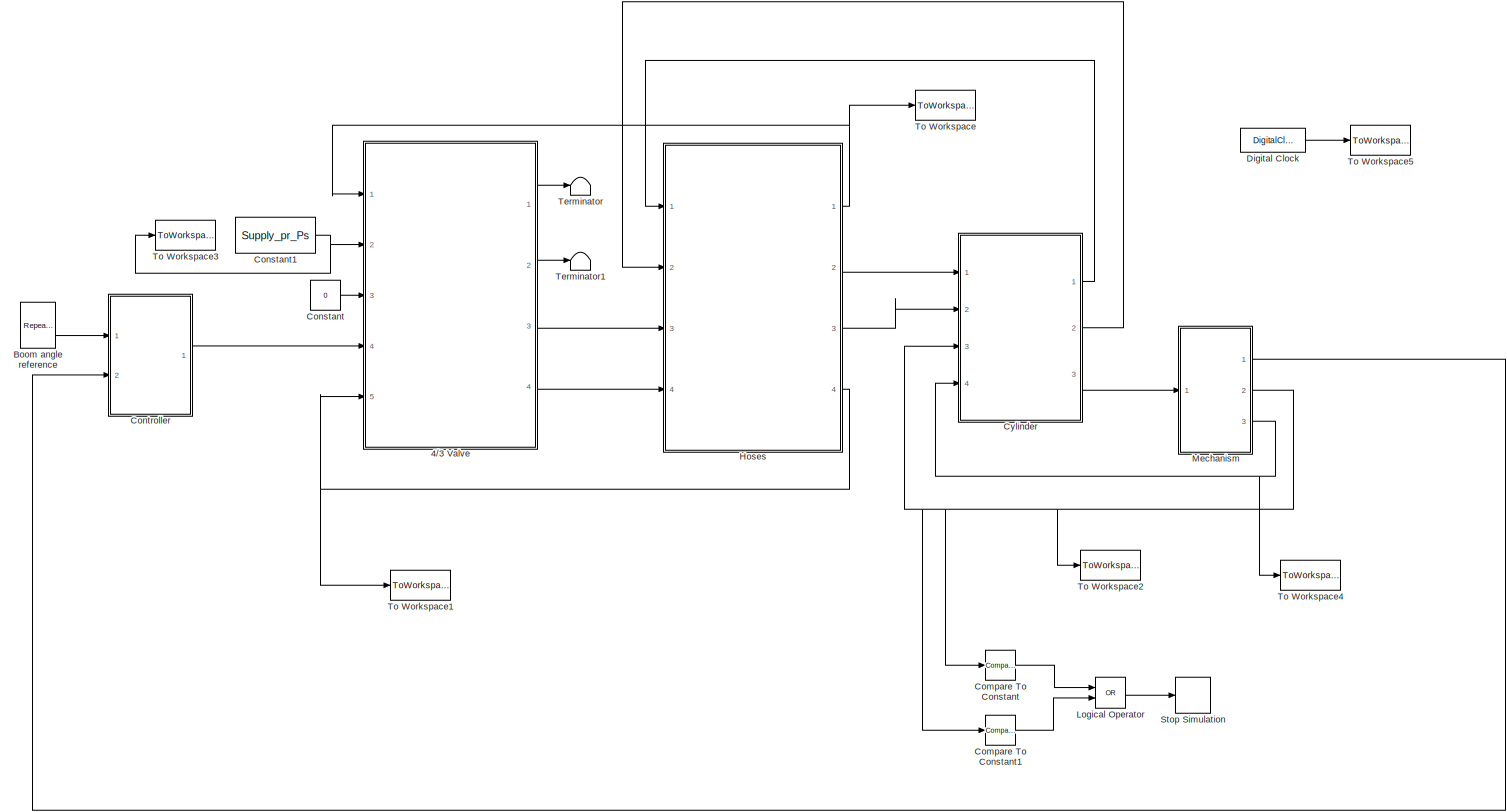
[diagram: root canvas - part 1/1, most of the canvas]
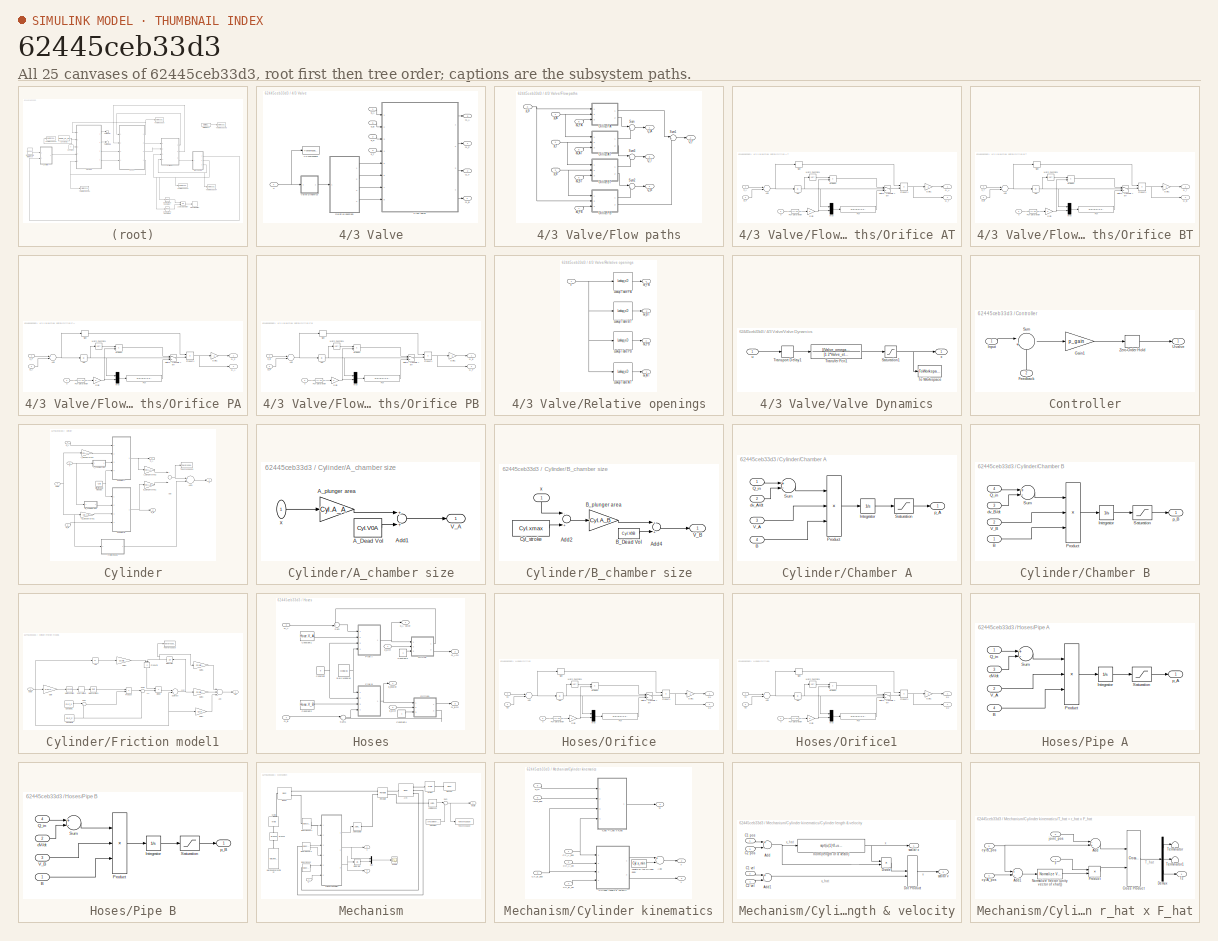
[diagram: thumbnail index - all 25 canvases of the model, root first then tree order]
MODEL slx_62445ceb33d3
KIND model
CONFIG AbsTol = auto
CONFIG FixedStep = auto
CONFIG MaxStep = 1e-3
CONFIG MinStep = auto
CONFIG RelTol = 1e-3
CONFIG SampleTimeConstraint = Unconstrained
CONFIG Solver = ode23tb
CONFIG SolverMode = Auto
CONFIG SolverName = ode23tb
CONFIG StartTime = 0.0
CONFIG StopTime = 20
BLOCK [SubSystem] 4//3 Valve
  Ports = [5, 4]
  RequestExecContextInheritance = off
  Variant = off
BLOCK [SubSystem] 4//3 Valve/Flow paths
  Ports = [8, 4]
  RequestExecContextInheritance = off
  Variant = off
BLOCK [SubSystem] 4//3 Valve/Flow paths/Orifice AT
  Ports = [3, 2]
  RequestExecContextInheritance = off
  Variant = off
BLOCK [Abs] 4//3 Valve/Flow paths/Orifice AT/Abs
  ZeroCross = off
BLOCK [Sum] 4//3 Valve/Flow paths/Orifice AT/Add
  InputSameDT = off
  Inputs = +-
  OutDataTypeStr = Inherit: Inherit via internal rule
  Ports = [2, 1]
  SaturateOnIntegerOverflow = off
BLOCK [Fcn] 4//3 Valve/Flow paths/Orifice AT/Fcn
  Expr = u[2]*u[1]/2.0/sqrt(ptr)*(3-u[1]/ptr)
BLOCK [Fcn] 4//3 Valve/Flow paths/Orifice AT/Fcn-Saturation
  Expr = (u(1)>=-1e-10)*u(1)
BLOCK [Gain] 4//3 Valve/Flow paths/Orifice AT/Gain
  Gain = K
BLOCK [Gain] 4//3 Valve/Flow paths/Orifice AT/Gain1
  Gain = -1
BLOCK [Math] 4//3 Valve/Flow paths/Orifice AT/Math Function1
  Operator = sqrt
  Ports = [1, 1]
BLOCK [Mux] 4//3 Valve/Flow paths/Orifice AT/Mux
  DisplayOption = bar
  Inputs = 2
  Ports = [2, 1]
BLOCK [Product] 4//3 Valve/Flow paths/Orifice AT/Product
  Ports = [2, 1]
  RndMeth = Floor
BLOCK [Product] 4//3 Valve/Flow paths/Orifice AT/Product1
  Ports = [2, 1]
  RndMeth = Floor
BLOCK [Outport] 4//3 Valve/Flow paths/Orifice AT/Q_A
  IconDisplay = Port number
  InitialOutput = 0
BLOCK [Outport] 4//3 Valve/Flow paths/Orifice AT/Q_T
  IconDisplay = Port number
  InitialOutput = 0
  Port = 2
BLOCK [Signum] 4//3 Valve/Flow paths/Orifice AT/Sign
  ZeroCross = off
BLOCK [Switch] 4//3 Valve/Flow paths/Orifice AT/Switch, treshold = ptr
  InputSameDT = off
  Threshold = ptr
  ZeroCross = off
BLOCK [Inport] 4//3 Valve/Flow paths/Orifice AT/p_A
  IconDisplay = Port number
BLOCK [Inport] 4//3 Valve/Flow paths/Orifice AT/p_T
  IconDisplay = Port number
  Port = 2
BLOCK [Inport] 4//3 Valve/Flow paths/Orifice AT/u
  IconDisplay = Port number
  Port = 3
BLOCK [SubSystem] 4//3 Valve/Flow paths/Orifice BT
  Ports = [3, 2]
  RequestExecContextInheritance = off
  Variant = off
BLOCK [Abs] 4//3 Valve/Flow paths/Orifice BT/Abs
  ZeroCross = off
BLOCK [Sum] 4//3 Valve/Flow paths/Orifice BT/Add
  InputSameDT = off
  Inputs = +-
  OutDataTypeStr = Inherit: Inherit via internal rule
  Ports = [2, 1]
  SaturateOnIntegerOverflow = off
BLOCK [Fcn] 4//3 Valve/Flow paths/Orifice BT/Fcn
  Expr = u[2]*u[1]/2.0/sqrt(ptr)*(3-u[1]/ptr)
BLOCK [Fcn] 4//3 Valve/Flow paths/Orifice BT/Fcn-Saturation
  Expr = (u(1)>=-1e-10)*u(1)
BLOCK [Gain] 4//3 Valve/Flow paths/Orifice BT/Gain
  Gain = K
BLOCK [Gain] 4//3 Valve/Flow paths/Orifice BT/Gain1
  Gain = -1
BLOCK [Math] 4//3 Valve/Flow paths/Orifice BT/Math Function1
  Operator = sqrt
  Ports = [1, 1]
BLOCK [Mux] 4//3 Valve/Flow paths/Orifice BT/Mux
  DisplayOption = bar
  Inputs = 2
  Ports = [2, 1]
BLOCK [Product] 4//3 Valve/Flow paths/Orifice BT/Product
  Ports = [2, 1]
  RndMeth = Floor
BLOCK [Product] 4//3 Valve/Flow paths/Orifice BT/Product1
  Ports = [2, 1]
  RndMeth = Floor
BLOCK [Outport] 4//3 Valve/Flow paths/Orifice BT/Q_B
  IconDisplay = Port number
  InitialOutput = 0
  Port = 2
BLOCK [Outport] 4//3 Valve/Flow paths/Orifice BT/Q_T
  IconDisplay = Port number
  InitialOutput = 0
BLOCK [Signum] 4//3 Valve/Flow paths/Orifice BT/Sign
  ZeroCross = off
BLOCK [Switch] 4//3 Valve/Flow paths/Orifice BT/Switch, treshold = ptr
  InputSameDT = off
  Threshold = ptr
  ZeroCross = off
BLOCK [Inport] 4//3 Valve/Flow paths/Orifice BT/p_B
  IconDisplay = Port number
  Port = 2
BLOCK [Inport] 4//3 Valve/Flow paths/Orifice BT/p_T
  IconDisplay = Port number
BLOCK [Inport] 4//3 Valve/Flow paths/Orifice BT/u
  IconDisplay = Port number
  Port = 3
BLOCK [SubSystem] 4//3 Valve/Flow paths/Orifice PA
  Ports = [3, 2]
  RequestExecContextInheritance = off
  Variant = off
BLOCK [Abs] 4//3 Valve/Flow paths/Orifice PA/Abs
  ZeroCross = off
BLOCK [Sum] 4//3 Valve/Flow paths/Orifice PA/Add
  InputSameDT = off
  Inputs = +-
  OutDataTypeStr = Inherit: Inherit via internal rule
  Ports = [2, 1]
  SaturateOnIntegerOverflow = off
BLOCK [Fcn] 4//3 Valve/Flow paths/Orifice PA/Fcn
  Expr = u[2]*u[1]/2.0/sqrt(ptr)*(3-u[1]/ptr)
BLOCK [Fcn] 4//3 Valve/Flow paths/Orifice PA/Fcn-Saturation
  Expr = (u(1)>=-1e-10)*u(1)
BLOCK [Gain] 4//3 Valve/Flow paths/Orifice PA/Gain
  Gain = K
BLOCK [Gain] 4//3 Valve/Flow paths/Orifice PA/Gain1
  Gain = -1
BLOCK [Math] 4//3 Valve/Flow paths/Orifice PA/Math Function1
  Operator = sqrt
  Ports = [1, 1]
BLOCK [Mux] 4//3 Valve/Flow paths/Orifice PA/Mux
  DisplayOption = bar
  Inputs = 2
  Ports = [2, 1]
BLOCK [Product] 4//3 Valve/Flow paths/Orifice PA/Product
  Ports = [2, 1]
  RndMeth = Floor
BLOCK [Product] 4//3 Valve/Flow paths/Orifice PA/Product1
  Ports = [2, 1]
  RndMeth = Floor
BLOCK [Outport] 4//3 Valve/Flow paths/Orifice PA/Q_A
  IconDisplay = Port number
  InitialOutput = 0
  Port = 2
BLOCK [Outport] 4//3 Valve/Flow paths/Orifice PA/Q_P
  IconDisplay = Port number
  InitialOutput = 0
BLOCK [Signum] 4//3 Valve/Flow paths/Orifice PA/Sign
  ZeroCross = off
BLOCK [Switch] 4//3 Valve/Flow paths/Orifice PA/Switch, treshold = ptr
  InputSameDT = off
  Threshold = ptr
  ZeroCross = off
BLOCK [Inport] 4//3 Valve/Flow paths/Orifice PA/p_A
  IconDisplay = Port number
  Port = 2
BLOCK [Inport] 4//3 Valve/Flow paths/Orifice PA/p_P
  IconDisplay = Port number
BLOCK [Inport] 4//3 Valve/Flow paths/Orifice PA/u
  IconDisplay = Port number
  Port = 3
BLOCK [SubSystem] 4//3 Valve/Flow paths/Orifice PB
  Ports = [3, 2]
  RequestExecContextInheritance = off
  Variant = off
BLOCK [Abs] 4//3 Valve/Flow paths/Orifice PB/Abs
  ZeroCross = off
BLOCK [Sum] 4//3 Valve/Flow paths/Orifice PB/Add
  InputSameDT = off
  Inputs = +-
  OutDataTypeStr = Inherit: Inherit via internal rule
  Ports = [2, 1]
  SaturateOnIntegerOverflow = off
BLOCK [Fcn] 4//3 Valve/Flow paths/Orifice PB/Fcn
  Expr = u[2]*u[1]/2.0/sqrt(ptr)*(3-u[1]/ptr)
BLOCK [Fcn] 4//3 Valve/Flow paths/Orifice PB/Fcn-Saturation
  Expr = (u(1)>=-1e-10)*u(1)
BLOCK [Gain] 4//3 Valve/Flow paths/Orifice PB/Gain
  Gain = K
BLOCK [Gain] 4//3 Valve/Flow paths/Orifice PB/Gain1
  Gain = -1
BLOCK [Math] 4//3 Valve/Flow paths/Orifice PB/Math Function1
  Operator = sqrt
  Ports = [1, 1]
BLOCK [Mux] 4//3 Valve/Flow paths/Orifice PB/Mux
  DisplayOption = bar
  Inputs = 2
  Ports = [2, 1]
BLOCK [Product] 4//3 Valve/Flow paths/Orifice PB/Product
  Ports = [2, 1]
  RndMeth = Floor
BLOCK [Product] 4//3 Valve/Flow paths/Orifice PB/Product1
  Ports = [2, 1]
  RndMeth = Floor
BLOCK [Outport] 4//3 Valve/Flow paths/Orifice PB/Q_B
  IconDisplay = Port number
  InitialOutput = 0
BLOCK [Outport] 4//3 Valve/Flow paths/Orifice PB/Q_P
  IconDisplay = Port number
  InitialOutput = 0
  Port = 2
BLOCK [Signum] 4//3 Valve/Flow paths/Orifice PB/Sign
  ZeroCross = off
BLOCK [Switch] 4//3 Valve/Flow paths/Orifice PB/Switch, treshold = ptr
  InputSameDT = off
  Threshold = ptr
  ZeroCross = off
BLOCK [Inport] 4//3 Valve/Flow paths/Orifice PB/p_B
  IconDisplay = Port number
BLOCK [Inport] 4//3 Valve/Flow paths/Orifice PB/p_P
  IconDisplay = Port number
  Port = 2
BLOCK [Inport] 4//3 Valve/Flow paths/Orifice PB/u
  IconDisplay = Port number
  Port = 3
BLOCK [Outport] 4//3 Valve/Flow paths/Q_A
  IconDisplay = Port number
BLOCK [Outport] 4//3 Valve/Flow paths/Q_B
  IconDisplay = Port number
  Port = 4
BLOCK [Outport] 4//3 Valve/Flow paths/Q_P
  IconDisplay = Port number
  Port = 2
BLOCK [Outport] 4//3 Valve/Flow paths/Q_T
  IconDisplay = Port number
  Port = 3
BLOCK [Sum] 4//3 Valve/Flow paths/Sum
  IconShape = round
  InputSameDT = off
  Inputs = |++
  OutDataTypeStr = Inherit: Inherit via internal rule
  Ports = [2, 1]
  SaturateOnIntegerOverflow = off
BLOCK [Sum] 4//3 Valve/Flow paths/Sum1
  IconShape = round
  InputSameDT = off
  Inputs = |++
  OutDataTypeStr = Inherit: Inherit via internal rule
  Ports = [2, 1]
  SaturateOnIntegerOverflow = off
BLOCK [Sum] 4//3 Valve/Flow paths/Sum2
  IconShape = round
  InputSameDT = off
  Inputs = |++
  OutDataTypeStr = Inherit: Inherit via internal rule
  Ports = [2, 1]
  SaturateOnIntegerOverflow = off
BLOCK [Sum] 4//3 Valve/Flow paths/Sum3
  IconShape = round
  InputSameDT = off
  Inputs = |++
  OutDataTypeStr = Inherit: Inherit via internal rule
  Ports = [2, 1]
  SaturateOnIntegerOverflow = off
BLOCK [Inport] 4//3 Valve/Flow paths/av_AT
  IconDisplay = Port number
  Port = 5
BLOCK [Inport] 4//3 Valve/Flow paths/av_BT
  IconDisplay = Port number
  Port = 6
BLOCK [Inport] 4//3 Valve/Flow paths/av_PA
  IconDisplay = Port number
  Port = 8
BLOCK [Inport] 4//3 Valve/Flow paths/av_PB
  IconDisplay = Port number
  Port = 7
BLOCK [Inport] 4//3 Valve/Flow paths/p_A
  IconDisplay = Port number
BLOCK [Inport] 4//3 Valve/Flow paths/p_B
  IconDisplay = Port number
  Port = 2
BLOCK [Inport] 4//3 Valve/Flow paths/p_S
  IconDisplay = Port number
  Port = 3
BLOCK [Inport] 4//3 Valve/Flow paths/p_T
  IconDisplay = Port number
  Port = 4
BLOCK [Outport] 4//3 Valve/Q_A
  IconDisplay = Port number
  Port = 3
BLOCK [Outport] 4//3 Valve/Q_B
  IconDisplay = Port number
  Port = 4
BLOCK [Outport] 4//3 Valve/Q_P
  IconDisplay = Port number
BLOCK [Outport] 4//3 Valve/Q_T
  IconDisplay = Port number
  Port = 2
BLOCK [SubSystem] 4//3 Valve/Relative openings
  Ports = [1, 4]
  RequestExecContextInheritance = off
  Variant = off
BLOCK [Lookup_n-D] 4//3 Valve/Relative openings/Lookup Table AT
  BreakpointsForDimension1 = Valve.lookupspoolAT
  InternalRulePriority = Speed
  NumberOfTableDimensions = 1
  Ports = [1, 1]
  RndMeth = Simplest
  Table = Valve.lookupopenAT
BLOCK [Lookup_n-D] 4//3 Valve/Relative openings/Lookup Table BT
  BreakpointsForDimension1 = Valve.lookupspoolBT
  InternalRulePriority = Speed
  NumberOfTableDimensions = 1
  Ports = [1, 1]
  RndMeth = Simplest
  Table = Valve.lookupopenBT
BLOCK [Lookup_n-D] 4//3 Valve/Relative openings/Lookup Table PA
  BreakpointsForDimension1 = Valve.lookupspoolPA
  InternalRulePriority = Speed
  NumberOfTableDimensions = 1
  Ports = [1, 1]
  RndMeth = Simplest
  Table = Valve.lookupopenPA
BLOCK [Lookup_n-D] 4//3 Valve/Relative openings/Lookup Table PB
  BreakpointsForDimension1 = Valve.lookupspoolPB
  InternalRulePriority = Speed
  NumberOfTableDimensions = 1
  Ports = [1, 1]
  RndMeth = Simplest
  Table = Valve.lookupopenPB
BLOCK [Outport] 4//3 Valve/Relative openings/av_AT
  IconDisplay = Port number
BLOCK [Outport] 4//3 Valve/Relative openings/av_BT
  IconDisplay = Port number
  Port = 2
BLOCK [Outport] 4//3 Valve/Relative openings/av_PA
  IconDisplay = Port number
  Port = 4
BLOCK [Outport] 4//3 Valve/Relative openings/av_PB
  IconDisplay = Port number
  Port = 3
BLOCK [Inport] 4//3 Valve/Relative openings/x
  IconDisplay = Port number
BLOCK [ToWorkspace] 4//3 Valve/To Workspace
  FixptAsFi = on
  MaxDataPoints = inf
  Ports = [1]
  SampleTime = -1
  Save2DSignal = 3-D array (concatenate along third dimension)
  VariableName = u_valve
BLOCK [SubSystem] 4//3 Valve/Valve Dynamics
  Ports = [1, 1]
  RequestExecContextInheritance = off
  Variant = off
BLOCK [Saturate] 4//3 Valve/Valve Dynamics/Saturation1
  InputPortMap = u0
  LowerLimit = -1
  Ports = [1, 1]
  UpperLimit = 1
BLOCK [ToWorkspace] 4//3 Valve/Valve Dynamics/To Workspace
  FixptAsFi = on
  MaxDataPoints = inf
  Ports = [1]
  SampleTime = -1
  Save2DSignal = 3-D array (concatenate along third dimension)
  VariableName = x_spool
BLOCK [TransferFcn] 4//3 Valve/Valve Dynamics/Transfer Fcn1
  Denominator = [1 2*Valve_eta*Valve_omega (Valve_omega)^2]
  Numerator = [(Valve_omega)^2]
BLOCK [TransportDelay] 4//3 Valve/Valve Dynamics/Transport Delay1
  DelayTime = Valve.secondorder_delay
  Ports = [1, 1]
BLOCK [Inport] 4//3 Valve/Valve Dynamics/u
  IconDisplay = Port number
BLOCK [Outport] 4//3 Valve/Valve Dynamics/x
  IconDisplay = Port number
BLOCK [Inport] 4//3 Valve/p_A
  IconDisplay = Port number
BLOCK [Inport] 4//3 Valve/p_B
  IconDisplay = Port number
  Port = 5
BLOCK [Inport] 4//3 Valve/p_S
  IconDisplay = Port number
  Port = 2
BLOCK [Inport] 4//3 Valve/p_T
  IconDisplay = Port number
  Port = 3
BLOCK [Inport] 4//3 Valve/u
  IconDisplay = Port number
  Port = 4
BLOCK [Reference] Boom angle reference  REF=simulink/Sources/Repeating
Sequence
Stair
  Ports = [0, 1]
  SourceBlock = simulink/Sources/Repeating\nSequence\nStair
  SourceType = Repeating Sequence Stair
BLOCK [Reference] Compare To Constant  REF=simulink/Logic and Bit
Operations/Compare
To Constant
  Ports = [1, 1]
  SourceBlock = simulink/Logic and Bit\nOperations/Compare\nTo Constant
  SourceType = Compare To Constant
BLOCK [Reference] Compare To Constant1  REF=simulink/Logic and Bit
Operations/Compare
To Constant
  Ports = [1, 1]
  SourceBlock = simulink/Logic and Bit\nOperations/Compare\nTo Constant
  SourceType = Compare To Constant
BLOCK [Constant] Constant
  Value = 0
BLOCK [Constant] Constant1
  Value = Supply_pr_Ps
BLOCK [SubSystem] Controller
  Ports = [2, 1]
  RequestExecContextInheritance = off
  Variant = off
BLOCK [Inport] Controller/Feedback
  IconDisplay = Port number
  Port = 2
BLOCK [Gain] Controller/Gain1
  Gain = p_gain
  OutDataTypeStr = Inherit: Inherit via internal rule
  ParamDataTypeStr = Inherit: Inherit via internal rule
  SaturateOnIntegerOverflow = off
BLOCK [Inport] Controller/Input
  IconDisplay = Port number
BLOCK [Sum] Controller/Sum
  IconShape = round
  InputSameDT = off
  Inputs = |+-
  OutDataTypeStr = Inherit: Inherit via internal rule
  Ports = [2, 1]
  SaturateOnIntegerOverflow = off
BLOCK [Outport] Controller/Uvalve
  IconDisplay = Port number
BLOCK [ZeroOrderHold] Controller/Zero-Order Hold
  SampleTime = 50e-3
BLOCK [SubSystem] Cylinder
  Ports = [4, 3]
  RequestExecContextInheritance = off
  Variant = off
BLOCK [Gain] Cylinder/-B_plunger area1
  Gain = -Cyl.A_B
  OutDataTypeStr = Inherit: Inherit via internal rule
  ParamDataTypeStr = Inherit: Inherit via internal rule
  SaturateOnIntegerOverflow = off
BLOCK [SubSystem] Cylinder/A_chamber size
  Ports = [1, 1]
  RequestExecContextInheritance = off
  Variant = off
BLOCK [Constant] Cylinder/A_chamber size/A_Dead Vol
  Value = Cyl.V0A
BLOCK [Gain] Cylinder/A_chamber size/A_plunger area
  Gain = Cyl.A_A
  OutDataTypeStr = Inherit: Inherit via internal rule
  ParamDataTypeStr = Inherit: Inherit via internal rule
  SaturateOnIntegerOverflow = off
BLOCK [Sum] Cylinder/A_chamber size/Add1
  InputSameDT = off
  OutDataTypeStr = Inherit: Inherit via internal rule
  Ports = [2, 1]
  SaturateOnIntegerOverflow = off
BLOCK [Outport] Cylinder/A_chamber size/V_A
  IconDisplay = Port number
BLOCK [Inport] Cylinder/A_chamber size/x
  IconDisplay = Port number
BLOCK [Gain] Cylinder/A_plunger area1
  Gain = Cyl.A_A
  OutDataTypeStr = Inherit: Inherit via internal rule
  ParamDataTypeStr = Inherit: Inherit via internal rule
  SaturateOnIntegerOverflow = off
BLOCK [Gain] Cylinder/A_plunger area2
  Gain = Cyl.A_A
  OutDataTypeStr = Inherit: Inherit via internal rule
  ParamDataTypeStr = Inherit: Inherit via internal rule
  SaturateOnIntegerOverflow = off
BLOCK [Sum] Cylinder/Add
  InputSameDT = off
  Inputs = +-
  OutDataTypeStr = Inherit: Inherit via internal rule
  Ports = [2, 1]
  SaturateOnIntegerOverflow = off
BLOCK [Sum] Cylinder/Add1
  InputSameDT = off
  Inputs = +-
  OutDataTypeStr = Inherit: Inherit via internal rule
  Ports = [2, 1]
  SaturateOnIntegerOverflow = off
BLOCK [SubSystem] Cylinder/B_chamber size
  Ports = [1, 1]
  RequestExecContextInheritance = off
  Variant = off
BLOCK [Sum] Cylinder/B_chamber size/Add2
  InputSameDT = off
  Inputs = -+
  OutDataTypeStr = Inherit: Inherit via internal rule
  Ports = [2, 1]
  SaturateOnIntegerOverflow = off
BLOCK [Sum] Cylinder/B_chamber size/Add4
  InputSameDT = off
  OutDataTypeStr = Inherit: Inherit via internal rule
  Ports = [2, 1]
  SaturateOnIntegerOverflow = off
BLOCK [Constant] Cylinder/B_chamber size/B_Dead Vol
  Value = Cyl.V0B
BLOCK [Gain] Cylinder/B_chamber size/B_plunger area
  Gain = Cyl.A_B
  OutDataTypeStr = Inherit: Inherit via internal rule
  ParamDataTypeStr = Inherit: Inherit via internal rule
  SaturateOnIntegerOverflow = off
BLOCK [Constant] Cylinder/B_chamber size/Cyl_stroke
  Value = Cyl.xmax
BLOCK [Outport] Cylinder/B_chamber size/V_B
  IconDisplay = Port number
BLOCK [Inport] Cylinder/B_chamber size/x
  IconDisplay = Port number
BLOCK [Gain] Cylinder/B_plunger area1
  Gain = Cyl.A_B
  OutDataTypeStr = Inherit: Inherit via internal rule
  ParamDataTypeStr = Inherit: Inherit via internal rule
  SaturateOnIntegerOverflow = off
BLOCK [SubSystem] Cylinder/Chamber A
  Ports = [4, 1]
  RequestExecContextInheritance = off
  Variant = off
BLOCK [Inport] Cylinder/Chamber A/ B
  IconDisplay = Port number
  Port = 4
BLOCK [Inport] Cylinder/Chamber A/ V_A
  IconDisplay = Port number
  Port = 3
BLOCK [Inport] Cylinder/Chamber A/ dv_A//dt
  IconDisplay = Port number
  Port = 2
BLOCK [Integrator] Cylinder/Chamber A/Integrator
  AbsoluteTolerance = 10
  InitialCondition = pinitial
  Ports = [1, 1]
BLOCK [Product] Cylinder/Chamber A/Product
  Inputs = */*
  Ports = [3, 1]
  RndMeth = Floor
BLOCK [Inport] Cylinder/Chamber A/Q_in
  IconDisplay = Port number
BLOCK [Saturate] Cylinder/Chamber A/Saturation
  InputPortMap = u0
  LowerLimit = 0
  Ports = [1, 1]
  UpperLimit = inf
BLOCK [Sum] Cylinder/Chamber A/Sum
  Inputs = +-
  Ports = [2, 1]
BLOCK [Outport] Cylinder/Chamber A/p_A
  IconDisplay = Port number
BLOCK [SubSystem] Cylinder/Chamber B
  Ports = [4, 1]
  RequestExecContextInheritance = off
  Variant = off
BLOCK [Inport] Cylinder/Chamber B/B
  IconDisplay = Port number
BLOCK [Integrator] Cylinder/Chamber B/Integrator
  AbsoluteTolerance = 10
  InitialCondition = pinitial
  Ports = [1, 1]
BLOCK [Product] Cylinder/Chamber B/Product
  Inputs = */*
  Ports = [3, 1]
  RndMeth = Floor
BLOCK [Inport] Cylinder/Chamber B/Q_in
  IconDisplay = Port number
  Port = 4
BLOCK [Saturate] Cylinder/Chamber B/Saturation
  InputPortMap = u0
  LowerLimit = 0
  Ports = [1, 1]
  UpperLimit = inf
BLOCK [Sum] Cylinder/Chamber B/Sum
  Inputs = +-
  Ports = [2, 1]
BLOCK [Inport] Cylinder/Chamber B/V_B
  IconDisplay = Port number
  Port = 2
BLOCK [Inport] Cylinder/Chamber B/dv_B//dt
  IconDisplay = Port number
  Port = 3
BLOCK [Outport] Cylinder/Chamber B/p_B
  IconDisplay = Port number
BLOCK [Constant] Cylinder/Effective Bulk Modulus
  Value = Cyl.B
BLOCK [Outport] Cylinder/F
  IconDisplay = Port number
  Port = 3
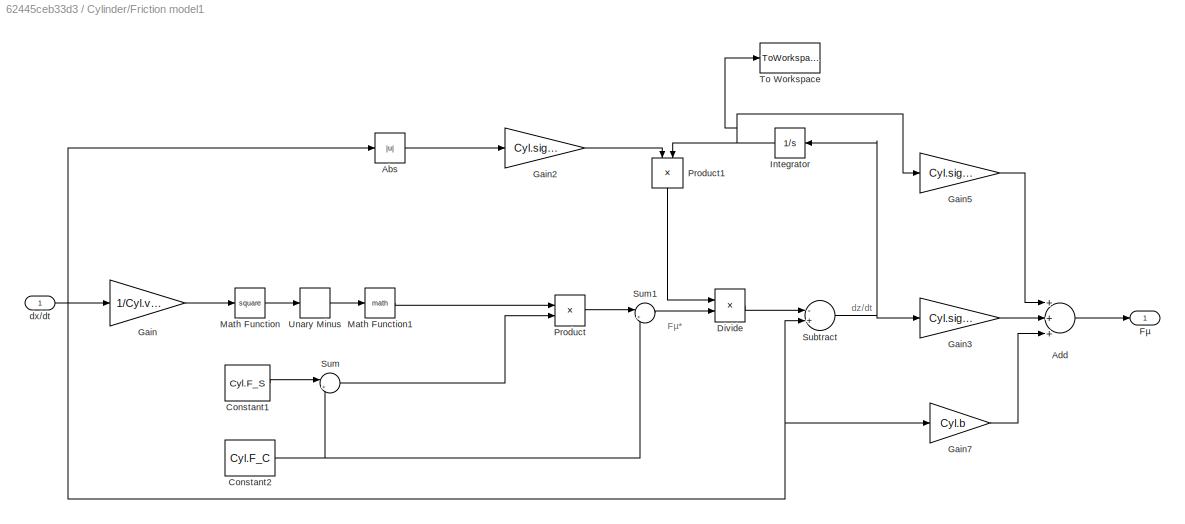
BLOCK [SubSystem] Cylinder/Friction model1
  Ports = [1, 1]
  RequestExecContextInheritance = off
  Variant = off
BLOCK [Abs] Cylinder/Friction model1/Abs
  SaturateOnIntegerOverflow = off
BLOCK [Sum] Cylinder/Friction model1/Add
  InputSameDT = off
  Inputs = +++
  OutDataTypeStr = Inherit: Inherit via internal rule
  Ports = [3, 1]
  SaturateOnIntegerOverflow = off
BLOCK [Constant] Cylinder/Friction model1/Constant1
  Value = Cyl.F_S
BLOCK [Constant] Cylinder/Friction model1/Constant2
  Value = Cyl.F_C
BLOCK [Product] Cylinder/Friction model1/Divide
  InputSameDT = off
  Inputs = */
  OutDataTypeStr = Inherit: Inherit via internal rule
  Ports = [2, 1]
BLOCK [Outport] Cylinder/Friction model1/Fµ
  IconDisplay = Port number
BLOCK [Gain] Cylinder/Friction model1/Gain
  Gain = 1/Cyl.v_s
  OutDataTypeStr = Inherit: Inherit via internal rule
  ParamDataTypeStr = Inherit: Inherit via internal rule
  SaturateOnIntegerOverflow = off
BLOCK [Gain] Cylinder/Friction model1/Gain2
  Gain = Cyl.sigma_0
  OutDataTypeStr = Inherit: Inherit via internal rule
  ParamDataTypeStr = Inherit: Inherit via internal rule
  SaturateOnIntegerOverflow = off
BLOCK [Gain] Cylinder/Friction model1/Gain3
  Gain = Cyl.sigma_1
  OutDataTypeStr = Inherit: Inherit via internal rule
  ParamDataTypeStr = Inherit: Inherit via internal rule
  SaturateOnIntegerOverflow = off
BLOCK [Gain] Cylinder/Friction model1/Gain5
  Gain = Cyl.sigma_0
  OutDataTypeStr = Inherit: Inherit via internal rule
  ParamDataTypeStr = Inherit: Inherit via internal rule
  SaturateOnIntegerOverflow = off
BLOCK [Gain] Cylinder/Friction model1/Gain7
  Gain = Cyl.b
  OutDataTypeStr = Inherit: Inherit via internal rule
  ParamDataTypeStr = Inherit: Inherit via internal rule
  SaturateOnIntegerOverflow = off
BLOCK [Integrator] Cylinder/Friction model1/Integrator
  AbsoluteTolerance = 1e-12
  Ports = [1, 1]
BLOCK [Math] Cylinder/Friction model1/Math Function
  Operator = square
  Ports = [1, 1]
BLOCK [Math] Cylinder/Friction model1/Math Function1
  Ports = [1, 1]
BLOCK [Product] Cylinder/Friction model1/Product
  InputSameDT = off
  OutDataTypeStr = Inherit: Inherit via internal rule
  Ports = [2, 1]
  RndMeth = Floor
  SaturateOnIntegerOverflow = off
BLOCK [Product] Cylinder/Friction model1/Product1
  InputSameDT = off
  OutDataTypeStr = Inherit: Inherit via internal rule
  Ports = [2, 1]
  RndMeth = Floor
  SaturateOnIntegerOverflow = off
BLOCK [Sum] Cylinder/Friction model1/Subtract
  InputSameDT = off
  Inputs = -+
  OutDataTypeStr = Inherit: Inherit via internal rule
  Ports = [2, 1]
  SaturateOnIntegerOverflow = off
BLOCK [Sum] Cylinder/Friction model1/Sum
  IconShape = round
  InputSameDT = off
  Inputs = |+-
  OutDataTypeStr = Inherit: Inherit via internal rule
  Ports = [2, 1]
  SaturateOnIntegerOverflow = off
BLOCK [Sum] Cylinder/Friction model1/Sum1
  IconShape = round
  InputSameDT = off
  Inputs = |++
  OutDataTypeStr = Inherit: Inherit via internal rule
  Ports = [2, 1]
  SaturateOnIntegerOverflow = off
BLOCK [ToWorkspace] Cylinder/Friction model1/To Workspace
  FixptAsFi = on
  MaxDataPoints = inf
  Ports = [1]
  SampleTime = -1
  Save2DSignal = 3-D array (concatenate along third dimension)
  VariableName = z
BLOCK [UnaryMinus] Cylinder/Friction model1/Unary Minus
BLOCK [Inport] Cylinder/Friction model1/dx//dt
  IconDisplay = Port number
BLOCK [Inport] Cylinder/Q_A
  IconDisplay = Port number
BLOCK [Inport] Cylinder/Q_B
  IconDisplay = Port number
  Port = 2
BLOCK [ToWorkspace] Cylinder/To Workspace3
  FixptAsFi = on
  MaxDataPoints = inf
  Ports = [1]
  SampleTime = -1
  Save2DSignal = 3-D array (concatenate along third dimension)
  VariableName = Force
BLOCK [Inport] Cylinder/dx//dt
  IconDisplay = Port number
  Port = 4
BLOCK [Outport] Cylinder/p_A
  IconDisplay = Port number
BLOCK [Outport] Cylinder/p_B
  IconDisplay = Port number
  Port = 2
BLOCK [Inport] Cylinder/x
  IconDisplay = Port number
  Port = 3
BLOCK [DigitalClock] Digital Clock
BLOCK [SubSystem] Hoses
  Ports = [4, 4]
  RequestExecContextInheritance = off
  Variant = off
BLOCK [Constant] Hoses/Bulk Modulus
  Value = Hose.B
BLOCK [Constant] Hoses/Constant
  Value = 0
BLOCK [Constant] Hoses/Constant1
  Value = Hose.V_A
BLOCK [Constant] Hoses/Constant2
  Value = Hose.V_B
BLOCK [Constant] Hoses/Constant3
BLOCK [Constant] Hoses/Constant4
BLOCK [SubSystem] Hoses/Orifice
  Ports = [3, 2]
  RequestExecContextInheritance = off
  Variant = off
BLOCK [Abs] Hoses/Orifice/Abs
  ZeroCross = off
BLOCK [Sum] Hoses/Orifice/Add
  InputSameDT = off
  Inputs = +-
  OutDataTypeStr = Inherit: Inherit via internal rule
  Ports = [2, 1]
  SaturateOnIntegerOverflow = off
BLOCK [Fcn] Hoses/Orifice/Fcn
  Expr = u[2]*u[1]/2.0/sqrt(ptr)*(3-u[1]/ptr)
BLOCK [Fcn] Hoses/Orifice/Fcn-Saturation
  Expr = (u(1)>=-1e-10)*u(1)
BLOCK [Gain] Hoses/Orifice/Gain
  Gain = K
BLOCK [Gain] Hoses/Orifice/Gain1
  Gain = -1
BLOCK [Math] Hoses/Orifice/Math Function1
  Operator = sqrt
  Ports = [1, 1]
BLOCK [Mux] Hoses/Orifice/Mux
  DisplayOption = bar
  Inputs = 2
  Ports = [2, 1]
BLOCK [Product] Hoses/Orifice/Product
  Ports = [2, 1]
  RndMeth = Floor
BLOCK [Product] Hoses/Orifice/Product1
  Ports = [2, 1]
  RndMeth = Floor
BLOCK [Outport] Hoses/Orifice/Q1
  IconDisplay = Port number
  InitialOutput = 0
BLOCK [Outport] Hoses/Orifice/Q2
  IconDisplay = Port number
  InitialOutput = 0
  Port = 2
BLOCK [Signum] Hoses/Orifice/Sign
  ZeroCross = off
BLOCK [Switch] Hoses/Orifice/Switch, treshold = ptr
  InputSameDT = off
  Threshold = ptr
  ZeroCross = off
BLOCK [Inport] Hoses/Orifice/p1
  IconDisplay = Port number
BLOCK [Inport] Hoses/Orifice/p2
  IconDisplay = Port number
  Port = 2
BLOCK [Inport] Hoses/Orifice/u
  IconDisplay = Port number
  Port = 3
BLOCK [SubSystem] Hoses/Orifice1
  Ports = [3, 2]
  RequestExecContextInheritance = off
  Variant = off
BLOCK [Abs] Hoses/Orifice1/Abs
  ZeroCross = off
BLOCK [Sum] Hoses/Orifice1/Add
  InputSameDT = off
  Inputs = +-
  OutDataTypeStr = Inherit: Inherit via internal rule
  Ports = [2, 1]
  SaturateOnIntegerOverflow = off
BLOCK [Fcn] Hoses/Orifice1/Fcn
  Expr = u[2]*u[1]/2.0/sqrt(ptr)*(3-u[1]/ptr)
BLOCK [Fcn] Hoses/Orifice1/Fcn-Saturation
  Expr = (u(1)>=-1e-10)*u(1)
BLOCK [Gain] Hoses/Orifice1/Gain
  Gain = K
BLOCK [Gain] Hoses/Orifice1/Gain1
  Gain = -1
BLOCK [Math] Hoses/Orifice1/Math Function1
  Operator = sqrt
  Ports = [1, 1]
BLOCK [Mux] Hoses/Orifice1/Mux
  DisplayOption = bar
  Inputs = 2
  Ports = [2, 1]
BLOCK [Product] Hoses/Orifice1/Product
  Ports = [2, 1]
  RndMeth = Floor
BLOCK [Product] Hoses/Orifice1/Product1
  Ports = [2, 1]
  RndMeth = Floor
BLOCK [Outport] Hoses/Orifice1/Q1
  IconDisplay = Port number
  InitialOutput = 0
  Port = 2
BLOCK [Outport] Hoses/Orifice1/Q2
  IconDisplay = Port number
  InitialOutput = 0
BLOCK [Signum] Hoses/Orifice1/Sign
  ZeroCross = off
BLOCK [Switch] Hoses/Orifice1/Switch, treshold = ptr
  InputSameDT = off
  Threshold = ptr
  ZeroCross = off
BLOCK [Inport] Hoses/Orifice1/p1
  IconDisplay = Port number
BLOCK [Inport] Hoses/Orifice1/p2
  IconDisplay = Port number
  Port = 2
BLOCK [Inport] Hoses/Orifice1/u
  IconDisplay = Port number
  Port = 3
BLOCK [SubSystem] Hoses/Pipe A
  Ports = [4, 1]
  RequestExecContextInheritance = off
  Variant = off
BLOCK [Inport] Hoses/Pipe A/ B
  IconDisplay = Port number
  Port = 4
BLOCK [Inport] Hoses/Pipe A/ V_A
  IconDisplay = Port number
  Port = 2
BLOCK [Inport] Hoses/Pipe A/ dV//dt
  IconDisplay = Port number
  Port = 3
BLOCK [Integrator] Hoses/Pipe A/Integrator
  AbsoluteTolerance = 10
  InitialCondition = pinitial
  Ports = [1, 1]
BLOCK [Product] Hoses/Pipe A/Product
  Inputs = */*
  Ports = [3, 1]
  RndMeth = Floor
BLOCK [Inport] Hoses/Pipe A/Q_in
  IconDisplay = Port number
BLOCK [Saturate] Hoses/Pipe A/Saturation
  InputPortMap = u0
  LowerLimit = 0
  Ports = [1, 1]
  UpperLimit = inf
BLOCK [Sum] Hoses/Pipe A/Sum
  Inputs = +-
  Ports = [2, 1]
BLOCK [Outport] Hoses/Pipe A/p_A
  IconDisplay = Port number
BLOCK [SubSystem] Hoses/Pipe B
  Ports = [4, 1]
  RequestExecContextInheritance = off
  Variant = off
BLOCK [Inport] Hoses/Pipe B/ Q_in
  IconDisplay = Port number
  Port = 4
BLOCK [Inport] Hoses/Pipe B/ dV//dt
  IconDisplay = Port number
  Port = 2
BLOCK [Inport] Hoses/Pipe B/B
  IconDisplay = Port number
BLOCK [Integrator] Hoses/Pipe B/Integrator
  AbsoluteTolerance = 10
  InitialCondition = pinitial
  Ports = [1, 1]
BLOCK [Product] Hoses/Pipe B/Product
  Inputs = */*
  Ports = [3, 1]
  RndMeth = Floor
BLOCK [Saturate] Hoses/Pipe B/Saturation
  InputPortMap = u0
  LowerLimit = 0
  Ports = [1, 1]
  UpperLimit = inf
BLOCK [Sum] Hoses/Pipe B/Sum
  Inputs = +-
  Ports = [2, 1]
BLOCK [Inport] Hoses/Pipe B/V_B
  IconDisplay = Port number
  Port = 3
BLOCK [Outport] Hoses/Pipe B/p_B
  IconDisplay = Port number
BLOCK [Inport] Hoses/Q_A
  IconDisplay = Port number
  Port = 3
BLOCK [Outport] Hoses/Q_Acyl
  IconDisplay = Port number
  Port = 2
BLOCK [Inport] Hoses/Q_B
  IconDisplay = Port number
  Port = 4
BLOCK [Outport] Hoses/Q_Bcyl
  IconDisplay = Port number
  Port = 3
BLOCK [Sum] Hoses/Sum
  IconShape = round
  InputSameDT = off
  Inputs = ++|
  OutDataTypeStr = Inherit: Inherit via internal rule
  Ports = [2, 1]
  SaturateOnIntegerOverflow = off
BLOCK [Sum] Hoses/Sum1
  IconShape = round
  InputSameDT = off
  Inputs = |++
  OutDataTypeStr = Inherit: Inherit via internal rule
  Ports = [2, 1]
  SaturateOnIntegerOverflow = off
BLOCK [Outport] Hoses/p_A valve
  IconDisplay = Port number
BLOCK [Inport] Hoses/p_Bcyl
  IconDisplay = Port number
  Port = 2
BLOCK [Inport] Hoses/p_a.cyl
  IconDisplay = Port number
BLOCK [Outport] Hoses/p_bvalve
  IconDisplay = Port number
  Port = 4
BLOCK [Logic] Logical Operator
  AllPortsSameDT = off
  Operator = OR
  OutDataTypeStr = boolean
  Ports = [2, 1]
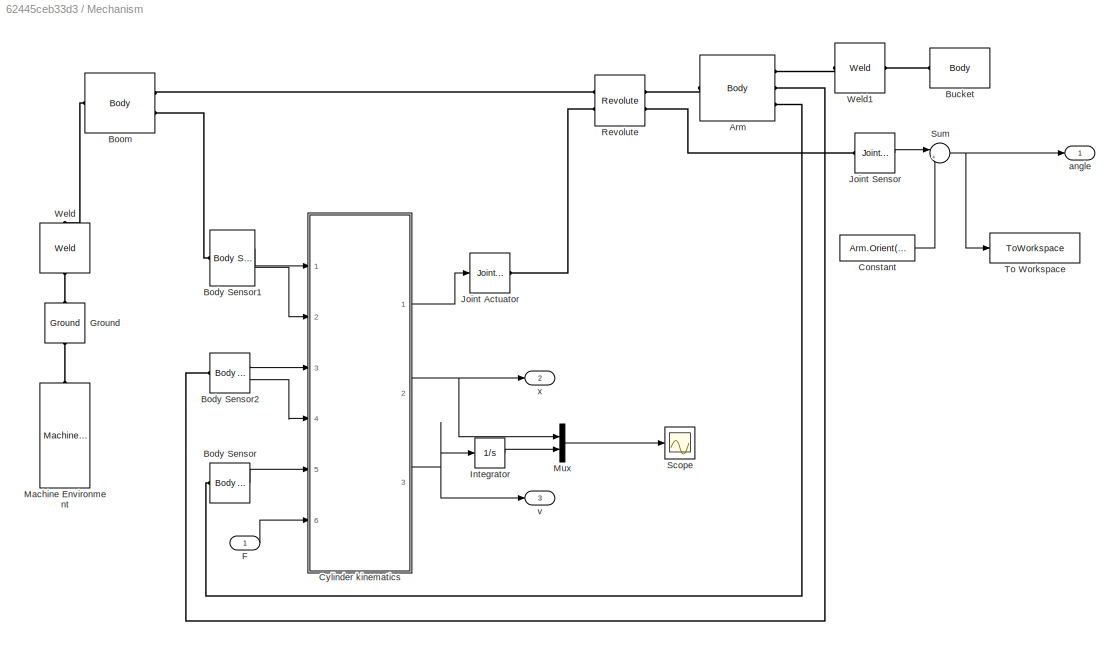
BLOCK [SubSystem] Mechanism
  Ports = [1, 3]
  RequestExecContextInheritance = off
  Variant = off
BLOCK [Reference] Mechanism/Arm  REF=mblibv1/Bodies/Body
  Ports = [0, 0, 0, 0, 0, 1, 3]
  SourceBlock = mblibv1/Bodies/Body
  SourceType = Body
BLOCK [Reference] Mechanism/Body Sensor  REF=mblibv1/Sensors & 
Actuators/Body Sensor
  Ports = [0, 1, 0, 0, 0, 1]
  SourceBlock = mblibv1/Sensors & \nActuators/Body Sensor
  SourceType = Body Sensor
BLOCK [Reference] Mechanism/Body Sensor1  REF=mblibv1/Sensors & 
Actuators/Body Sensor
  Ports = [0, 2, 0, 0, 0, 1]
  SourceBlock = mblibv1/Sensors & \nActuators/Body Sensor
  SourceType = Body Sensor
BLOCK [Reference] Mechanism/Body Sensor2  REF=mblibv1/Sensors & 
Actuators/Body Sensor
  Ports = [0, 2, 0, 0, 0, 1]
  SourceBlock = mblibv1/Sensors & \nActuators/Body Sensor
  SourceType = Body Sensor
BLOCK [Reference] Mechanism/Boom  REF=mblibv1/Bodies/Body
  Ports = [0, 0, 0, 0, 0, 1, 2]
  SourceBlock = mblibv1/Bodies/Body
  SourceType = Body
BLOCK [Reference] Mechanism/Bucket  REF=mblibv1/Bodies/Body
  Ports = [0, 0, 0, 0, 0, 1]
  SourceBlock = mblibv1/Bodies/Body
  SourceType = Body
BLOCK [Constant] Mechanism/Constant
  Value = Arm.Orient(3)
BLOCK [SubSystem] Mechanism/Cylinder kinematics
  Ports = [6, 3]
  RequestExecContextInheritance = off
  Variant = off
BLOCK [Sum] Mechanism/Cylinder kinematics/Add
  InputSameDT = off
  Inputs = +-
  OutDataTypeStr = Inherit: Inherit via internal rule
  Ports = [2, 1]
  SaturateOnIntegerOverflow = off
BLOCK [Inport] Mechanism/Cylinder kinematics/Cyl_A_pos
  IconDisplay = Port number
BLOCK [Inport] Mechanism/Cylinder kinematics/Cyl_A_vel
  IconDisplay = Port number
  Port = 2
BLOCK [Inport] Mechanism/Cylinder kinematics/Cyl_B_pos
  IconDisplay = Port number
  Port = 3
BLOCK [Inport] Mechanism/Cylinder kinematics/Cyl_B_vel
  IconDisplay = Port number
  Port = 4
BLOCK [SubSystem] Mechanism/Cylinder kinematics/Cylinder length & velocity
  Ports = [4, 2]
  RequestExecContextInheritance = off
  Variant = off
BLOCK [Sum] Mechanism/Cylinder kinematics/Cylinder length & velocity/Add
  InputSameDT = off
  Inputs = +-
  OutDataTypeStr = Inherit: Inherit via internal rule
  Ports = [2, 1]
  SaturateOnIntegerOverflow = off
BLOCK [Sum] Mechanism/Cylinder kinematics/Cylinder length & velocity/Add1
  InputSameDT = off
  Inputs = +-
  OutDataTypeStr = Inherit: Inherit via internal rule
  Ports = [2, 1]
  SaturateOnIntegerOverflow = off
BLOCK [Inport] Mechanism/Cylinder kinematics/Cylinder length & velocity/C1 pos
  IconDisplay = Port number
BLOCK [Inport] Mechanism/Cylinder kinematics/Cylinder length & velocity/C1 vel
  IconDisplay = Port number
  Port = 2
BLOCK [Inport] Mechanism/Cylinder kinematics/Cylinder length & velocity/C2 pos
  IconDisplay = Port number
  Port = 3
BLOCK [Inport] Mechanism/Cylinder kinematics/Cylinder length & velocity/C2 vel
  IconDisplay = Port number
  Port = 4
BLOCK [Product] Mechanism/Cylinder kinematics/Cylinder length & velocity/Divide
  InputSameDT = off
  Inputs = /*
  OutDataTypeStr = Inherit: Inherit via internal rule
  Ports = [2, 1]
  RndMeth = Floor
  SaturateOnIntegerOverflow = off
BLOCK [DotProduct] Mechanism/Cylinder kinematics/Cylinder length & velocity/Dot Product
  OutDataTypeStr = Inherit: Inherit via internal rule
BLOCK [Fcn] Mechanism/Cylinder kinematics/Cylinder length & velocity/norm (length of a vector)
  Expr = sqrt(u(1)^2+u(2)^2+u(3)^2)
BLOCK [Outport] Mechanism/Cylinder kinematics/Cylinder length & velocity/scalar v
  IconDisplay = Port number
  Port = 2
BLOCK [Outport] Mechanism/Cylinder kinematics/Cylinder length & velocity/scalar x
  IconDisplay = Port number
BLOCK [Inport] Mechanism/Cylinder kinematics/F_in
  IconDisplay = Port number
  Port = 6
BLOCK [Constant] Mechanism/Cylinder kinematics/Length of the cylinder body
  Value = Cyl.x_min
BLOCK [SubSystem] Mechanism/Cylinder kinematics/T_hat = r_hat x F_hat
  Ports = [4, 1]
  RequestExecContextInheritance = off
  Variant = off
BLOCK [Sum] Mechanism/Cylinder kinematics/T_hat = r_hat x F_hat/Add
  InputSameDT = off
  Inputs = -+
  OutDataTypeStr = Inherit: Inherit via internal rule
  Ports = [2, 1]
  SaturateOnIntegerOverflow = off
BLOCK [Sum] Mechanism/Cylinder kinematics/T_hat = r_hat x F_hat/Add1
  InputSameDT = off
  Inputs = +-
  OutDataTypeStr = Inherit: Inherit via internal rule
  Ports = [2, 1]
  SaturateOnIntegerOverflow = off
BLOCK [Reference] Mechanism/Cylinder kinematics/T_hat = r_hat x F_hat/Cross Product  REF=vrlib/Utilities/Cross Product
  Ports = [2, 1]
  SourceBlock = vrlib/Utilities/Cross Product
  SourceType = Cross Product
BLOCK [Demux] Mechanism/Cylinder kinematics/T_hat = r_hat x F_hat/Demux
  DisplayOption = bar
  Outputs = 3
  Ports = [1, 3]
BLOCK [Inport] Mechanism/Cylinder kinematics/T_hat = r_hat x F_hat/F
  IconDisplay = Port number
BLOCK [Reference] Mechanism/Cylinder kinematics/T_hat = r_hat x F_hat/Normalize Vector (unity vector of xhat))  REF=vrlib/Utilities/Normalize Vector
  Ports = [1, 1]
  SourceBlock = vrlib/Utilities/Normalize Vector
  SourceType = Normalize Vector
BLOCK [Product] Mechanism/Cylinder kinematics/T_hat = r_hat x F_hat/Product
  InputSameDT = off
  OutDataTypeStr = Inherit: Inherit via internal rule
  Ports = [2, 1]
  RndMeth = Floor
  SaturateOnIntegerOverflow = off
BLOCK [Terminator] Mechanism/Cylinder kinematics/T_hat = r_hat x F_hat/Terminator
BLOCK [Terminator] Mechanism/Cylinder kinematics/T_hat = r_hat x F_hat/Terminator1
BLOCK [Outport] Mechanism/Cylinder kinematics/T_hat = r_hat x F_hat/Tz
  IconDisplay = Port number
BLOCK [Inport] Mechanism/Cylinder kinematics/T_hat = r_hat x F_hat/cylA_pos
  IconDisplay = Port number
  Port = 4
BLOCK [Inport] Mechanism/Cylinder kinematics/T_hat = r_hat x F_hat/cylB_pos
  IconDisplay = Port number
  Port = 3
BLOCK [Inport] Mechanism/Cylinder kinematics/T_hat = r_hat x F_hat/joint_pos
  IconDisplay = Port number
  Port = 2
BLOCK [Outport] Mechanism/Cylinder kinematics/Tz
  IconDisplay = Port number
BLOCK [Inport] Mechanism/Cylinder kinematics/joint_pos
  IconDisplay = Port number
  Port = 5
BLOCK [Outport] Mechanism/Cylinder kinematics/v
  IconDisplay = Port number
  Port = 3
BLOCK [Outport] Mechanism/Cylinder kinematics/x
  IconDisplay = Port number
  Port = 2
BLOCK [Inport] Mechanism/F
  IconDisplay = Port number
BLOCK [Reference] Mechanism/Ground  REF=mblibv1/Bodies/Ground
  Ports = [0, 0, 0, 0, 0, 1, 1]
  SourceBlock = mblibv1/Bodies/Ground
  SourceType = Ground
  UserDataPersistent = on
BLOCK [Integrator] Mechanism/Integrator
  Ports = [1, 1]
BLOCK [Reference] Mechanism/Joint Actuator  REF=mblibv1/Sensors & 
Actuators/Joint Actuator
  Ports = [1, 0, 0, 0, 0, 0, 1]
  SourceBlock = mblibv1/Sensors & \nActuators/Joint Actuator
  SourceType = Joint Actuator
BLOCK [Reference] Mechanism/Joint Sensor  REF=mblibv1/Sensors & 
Actuators/Joint Sensor
  Ports = [0, 1, 0, 0, 0, 1]
  SourceBlock = mblibv1/Sensors & \nActuators/Joint Sensor
  SourceType = Joint Sensor
BLOCK [Reference] Mechanism/Machine Environment  REF=mblibv1/Bodies/Machine
Environment
  Ports = [0, 0, 0, 0, 0, 0, 1]
  SourceBlock = mblibv1/Bodies/Machine\nEnvironment
  SourceType = Machine Environment
BLOCK [Mux] Mechanism/Mux
  DisplayOption = bar
  Inputs = 2
  Ports = [2, 1]
BLOCK [Reference] Mechanism/Revolute  REF=mblibv1/Joints/Revolute
  Ports = [0, 0, 0, 0, 0, 2, 2]
  SourceBlock = mblibv1/Joints/Revolute
  SourceType = Revolute
BLOCK [Scope] Mechanism/Scope
  Ports = [1]
  ScopeSpecificationString = Simulink.scopes.TimeScopeBlockCfg('CurrentConfiguration', extmgr.ConfigurationSet(extmgr.Configuration('Core','General UI',true),extmgr.Configuration('Core','Source UI',true),extmgr.Configuration('Sources','WiredSimulink',true),extmgr.Configuration('Visuals','Time Domain',true,'SerializedDisplays',{struct('MinYLimReal','-0.12283','MaxYLimReal','1.10546','YLabelReal','','MinYLimMag','0.00000','MaxY...<+1379ch>
BLOCK [Sum] Mechanism/Sum
  IconShape = round
  InputSameDT = off
  Inputs = |++
  OutDataTypeStr = Inherit: Inherit via internal rule
  Ports = [2, 1]
  SaturateOnIntegerOverflow = off
BLOCK [ToWorkspace] Mechanism/To Workspace
  FixptAsFi = on
  MaxDataPoints = inf
  Ports = [1]
  SampleTime = -1
  Save2DSignal = 3-D array (concatenate along third dimension)
  VariableName = Meas_JointAngle
BLOCK [Reference] Mechanism/Weld  REF=mblibv1/Joints/Weld
  Ports = [0, 0, 0, 0, 0, 1, 1]
  SourceBlock = mblibv1/Joints/Weld
  SourceType = Weld
BLOCK [Reference] Mechanism/Weld1  REF=mblibv1/Joints/Weld
  Ports = [0, 0, 0, 0, 0, 1, 1]
  SourceBlock = mblibv1/Joints/Weld
  SourceType = Weld
BLOCK [Outport] Mechanism/angle
  IconDisplay = Port number
BLOCK [Outport] Mechanism/v
  IconDisplay = Port number
  Port = 3
BLOCK [Outport] Mechanism/x
  IconDisplay = Port number
  Port = 2
BLOCK [Stop] Stop Simulation
BLOCK [Terminator] Terminator
BLOCK [Terminator] Terminator1
BLOCK [ToWorkspace] To Workspace
  FixptAsFi = on
  MaxDataPoints = inf
  Ports = [1]
  SampleTime = -1
  Save2DSignal = 3-D array (concatenate along third dimension)
  VariableName = Pressure_A
BLOCK [ToWorkspace] To Workspace1
  FixptAsFi = on
  MaxDataPoints = inf
  Ports = [1]
  SampleTime = -1
  Save2DSignal = 3-D array (concatenate along third dimension)
  VariableName = Pressure_B
BLOCK [ToWorkspace] To Workspace2
  FixptAsFi = on
  MaxDataPoints = inf
  Ports = [1]
  SampleTime = -1
  Save2DSignal = 3-D array (concatenate along third dimension)
  VariableName = Position_x
BLOCK [ToWorkspace] To Workspace3
  FixptAsFi = on
  MaxDataPoints = inf
  Ports = [1]
  SampleTime = -1
  Save2DSignal = 3-D array (concatenate along third dimension)
  VariableName = p_S
BLOCK [ToWorkspace] To Workspace4
  FixptAsFi = on
  MaxDataPoints = inf
  Ports = [1]
  SampleTime = -1
  Save2DSignal = 3-D array (concatenate along third dimension)
  VariableName = Velocity
BLOCK [ToWorkspace] To Workspace5
  FixptAsFi = on
  MaxDataPoints = inf
  Ports = [1]
  SampleTime = 50e-3
  Save2DSignal = 3-D array (concatenate along third dimension)
  VariableName = td
ANNOTATION Cylinder/Friction model1: Fµ*
ANNOTATION Cylinder/Friction model1: dz/dt
ANNOTATION Mechanism/Cylinder kinematics/Cylinder length & velocity: v
ANNOTATION Mechanism/Cylinder kinematics/Cylinder length & velocity: v_hat
ANNOTATION Mechanism/Cylinder kinematics/Cylinder length & velocity: x
ANNOTATION Mechanism/Cylinder kinematics/Cylinder length & velocity: x_hat
ANNOTATION Mechanism/Cylinder kinematics/T_hat = r_hat x F_hat: T_hat
NET 4//3 Valve/Flow paths/Orifice AT/Abs:1 -> 4//3 Valve/Flow paths/Orifice AT/Math Function1:1, 4//3 Valve/Flow paths/Orifice AT/Mux:1, 4//3 Valve/Flow paths/Orifice AT/Switch, treshold = ptr:2
NET 4//3 Valve/Flow paths/Orifice AT/Add:1 -> 4//3 Valve/Flow paths/Orifice AT/Abs:1, 4//3 Valve/Flow paths/Orifice AT/Sign:1
LINE 4//3 Valve/Flow paths/Orifice AT/Fcn-Saturation:1 -> 4//3 Valve/Flow paths/Orifice AT/Gain:1
LINE 4//3 Valve/Flow paths/Orifice AT/Fcn:1 -> 4//3 Valve/Flow paths/Orifice AT/Switch, treshold = ptr:3
LINE 4//3 Valve/Flow paths/Orifice AT/Gain1:1 -> 4//3 Valve/Flow paths/Orifice AT/Q_A:1
NET 4//3 Valve/Flow paths/Orifice AT/Gain:1 -> 4//3 Valve/Flow paths/Orifice AT/Mux:2, 4//3 Valve/Flow paths/Orifice AT/Product:2
LINE 4//3 Valve/Flow paths/Orifice AT/Math Function1:1 -> 4//3 Valve/Flow paths/Orifice AT/Product:1
LINE 4//3 Valve/Flow paths/Orifice AT/Mux:1 -> 4//3 Valve/Flow paths/Orifice AT/Fcn:1
NET 4//3 Valve/Flow paths/Orifice AT/Product1:1 -> 4//3 Valve/Flow paths/Orifice AT/Gain1:1, 4//3 Valve/Flow paths/Orifice AT/Q_T:1
LINE 4//3 Valve/Flow paths/Orifice AT/Product:1 -> 4//3 Valve/Flow paths/Orifice AT/Switch, treshold = ptr:1
LINE 4//3 Valve/Flow paths/Orifice AT/Sign:1 -> 4//3 Valve/Flow paths/Orifice AT/Product1:1
LINE 4//3 Valve/Flow paths/Orifice AT/Switch, treshold = ptr:1 -> 4//3 Valve/Flow paths/Orifice AT/Product1:2
LINE 4//3 Valve/Flow paths/Orifice AT/p_A:1 -> 4//3 Valve/Flow paths/Orifice AT/Add:1
LINE 4//3 Valve/Flow paths/Orifice AT/p_T:1 -> 4//3 Valve/Flow paths/Orifice AT/Add:2
LINE 4//3 Valve/Flow paths/Orifice AT/u:1 -> 4//3 Valve/Flow paths/Orifice AT/Fcn-Saturation:1
LINE 4//3 Valve/Flow paths/Orifice AT:1 -> 4//3 Valve/Flow paths/Sum:2
LINE 4//3 Valve/Flow paths/Orifice AT:2 -> 4//3 Valve/Flow paths/Sum3:1
NET 4//3 Valve/Flow paths/Orifice BT/Abs:1 -> 4//3 Valve/Flow paths/Orifice BT/Math Function1:1, 4//3 Valve/Flow paths/Orifice BT/Mux:1, 4//3 Valve/Flow paths/Orifice BT/Switch, treshold = ptr:2
NET 4//3 Valve/Flow paths/Orifice BT/Add:1 -> 4//3 Valve/Flow paths/Orifice BT/Abs:1, 4//3 Valve/Flow paths/Orifice BT/Sign:1
LINE 4//3 Valve/Flow paths/Orifice BT/Fcn-Saturation:1 -> 4//3 Valve/Flow paths/Orifice BT/Gain:1
LINE 4//3 Valve/Flow paths/Orifice BT/Fcn:1 -> 4//3 Valve/Flow paths/Orifice BT/Switch, treshold = ptr:3
LINE 4//3 Valve/Flow paths/Orifice BT/Gain1:1 -> 4//3 Valve/Flow paths/Orifice BT/Q_T:1
NET 4//3 Valve/Flow paths/Orifice BT/Gain:1 -> 4//3 Valve/Flow paths/Orifice BT/Mux:2, 4//3 Valve/Flow paths/Orifice BT/Product:2
LINE 4//3 Valve/Flow paths/Orifice BT/Math Function1:1 -> 4//3 Valve/Flow paths/Orifice BT/Product:1
LINE 4//3 Valve/Flow paths/Orifice BT/Mux:1 -> 4//3 Valve/Flow paths/Orifice BT/Fcn:1
NET 4//3 Valve/Flow paths/Orifice BT/Product1:1 -> 4//3 Valve/Flow paths/Orifice BT/Gain1:1, 4//3 Valve/Flow paths/Orifice BT/Q_B:1
LINE 4//3 Valve/Flow paths/Orifice BT/Product:1 -> 4//3 Valve/Flow paths/Orifice BT/Switch, treshold = ptr:1
LINE 4//3 Valve/Flow paths/Orifice BT/Sign:1 -> 4//3 Valve/Flow paths/Orifice BT/Product1:1
LINE 4//3 Valve/Flow paths/Orifice BT/Switch, treshold = ptr:1 -> 4//3 Valve/Flow paths/Orifice BT/Product1:2
LINE 4//3 Valve/Flow paths/Orifice BT/p_B:1 -> 4//3 Valve/Flow paths/Orifice BT/Add:2
LINE 4//3 Valve/Flow paths/Orifice BT/p_T:1 -> 4//3 Valve/Flow paths/Orifice BT/Add:1
LINE 4//3 Valve/Flow paths/Orifice BT/u:1 -> 4//3 Valve/Flow paths/Orifice BT/Fcn-Saturation:1
LINE 4//3 Valve/Flow paths/Orifice BT:1 -> 4//3 Valve/Flow paths/Sum3:2
LINE 4//3 Valve/Flow paths/Orifice BT:2 -> 4//3 Valve/Flow paths/Sum2:1
NET 4//3 Valve/Flow paths/Orifice PA/Abs:1 -> 4//3 Valve/Flow paths/Orifice PA/Math Function1:1, 4//3 Valve/Flow paths/Orifice PA/Mux:1, 4//3 Valve/Flow paths/Orifice PA/Switch, treshold = ptr:2
NET 4//3 Valve/Flow paths/Orifice PA/Add:1 -> 4//3 Valve/Flow paths/Orifice PA/Abs:1, 4//3 Valve/Flow paths/Orifice PA/Sign:1
LINE 4//3 Valve/Flow paths/Orifice PA/Fcn-Saturation:1 -> 4//3 Valve/Flow paths/Orifice PA/Gain:1
LINE 4//3 Valve/Flow paths/Orifice PA/Fcn:1 -> 4//3 Valve/Flow paths/Orifice PA/Switch, treshold = ptr:3
LINE 4//3 Valve/Flow paths/Orifice PA/Gain1:1 -> 4//3 Valve/Flow paths/Orifice PA/Q_P:1
NET 4//3 Valve/Flow paths/Orifice PA/Gain:1 -> 4//3 Valve/Flow paths/Orifice PA/Mux:2, 4//3 Valve/Flow paths/Orifice PA/Product:2
LINE 4//3 Valve/Flow paths/Orifice PA/Math Function1:1 -> 4//3 Valve/Flow paths/Orifice PA/Product:1
LINE 4//3 Valve/Flow paths/Orifice PA/Mux:1 -> 4//3 Valve/Flow paths/Orifice PA/Fcn:1
NET 4//3 Valve/Flow paths/Orifice PA/Product1:1 -> 4//3 Valve/Flow paths/Orifice PA/Gain1:1, 4//3 Valve/Flow paths/Orifice PA/Q_A:1
LINE 4//3 Valve/Flow paths/Orifice PA/Product:1 -> 4//3 Valve/Flow paths/Orifice PA/Switch, treshold = ptr:1
LINE 4//3 Valve/Flow paths/Orifice PA/Sign:1 -> 4//3 Valve/Flow paths/Orifice PA/Product1:1
LINE 4//3 Valve/Flow paths/Orifice PA/Switch, treshold = ptr:1 -> 4//3 Valve/Flow paths/Orifice PA/Product1:2
LINE 4//3 Valve/Flow paths/Orifice PA/p_A:1 -> 4//3 Valve/Flow paths/Orifice PA/Add:2
LINE 4//3 Valve/Flow paths/Orifice PA/p_P:1 -> 4//3 Valve/Flow paths/Orifice PA/Add:1
LINE 4//3 Valve/Flow paths/Orifice PA/u:1 -> 4//3 Valve/Flow paths/Orifice PA/Fcn-Saturation:1
LINE 4//3 Valve/Flow paths/Orifice PA:1 -> 4//3 Valve/Flow paths/Sum1:1
LINE 4//3 Valve/Flow paths/Orifice PA:2 -> 4//3 Valve/Flow paths/Sum:1
NET 4//3 Valve/Flow paths/Orifice PB/Abs:1 -> 4//3 Valve/Flow paths/Orifice PB/Math Function1:1, 4//3 Valve/Flow paths/Orifice PB/Mux:1, 4//3 Valve/Flow paths/Orifice PB/Switch, treshold = ptr:2
NET 4//3 Valve/Flow paths/Orifice PB/Add:1 -> 4//3 Valve/Flow paths/Orifice PB/Abs:1, 4//3 Valve/Flow paths/Orifice PB/Sign:1
LINE 4//3 Valve/Flow paths/Orifice PB/Fcn-Saturation:1 -> 4//3 Valve/Flow paths/Orifice PB/Gain:1
LINE 4//3 Valve/Flow paths/Orifice PB/Fcn:1 -> 4//3 Valve/Flow paths/Orifice PB/Switch, treshold = ptr:3
LINE 4//3 Valve/Flow paths/Orifice PB/Gain1:1 -> 4//3 Valve/Flow paths/Orifice PB/Q_B:1
NET 4//3 Valve/Flow paths/Orifice PB/Gain:1 -> 4//3 Valve/Flow paths/Orifice PB/Mux:2, 4//3 Valve/Flow paths/Orifice PB/Product:2
LINE 4//3 Valve/Flow paths/Orifice PB/Math Function1:1 -> 4//3 Valve/Flow paths/Orifice PB/Product:1
LINE 4//3 Valve/Flow paths/Orifice PB/Mux:1 -> 4//3 Valve/Flow paths/Orifice PB/Fcn:1
NET 4//3 Valve/Flow paths/Orifice PB/Product1:1 -> 4//3 Valve/Flow paths/Orifice PB/Gain1:1, 4//3 Valve/Flow paths/Orifice PB/Q_P:1
LINE 4//3 Valve/Flow paths/Orifice PB/Product:1 -> 4//3 Valve/Flow paths/Orifice PB/Switch, treshold = ptr:1
LINE 4//3 Valve/Flow paths/Orifice PB/Sign:1 -> 4//3 Valve/Flow paths/Orifice PB/Product1:1
LINE 4//3 Valve/Flow paths/Orifice PB/Switch, treshold = ptr:1 -> 4//3 Valve/Flow paths/Orifice PB/Product1:2
LINE 4//3 Valve/Flow paths/Orifice PB/p_B:1 -> 4//3 Valve/Flow paths/Orifice PB/Add:1
LINE 4//3 Valve/Flow paths/Orifice PB/p_P:1 -> 4//3 Valve/Flow paths/Orifice PB/Add:2
LINE 4//3 Valve/Flow paths/Orifice PB/u:1 -> 4//3 Valve/Flow paths/Orifice PB/Fcn-Saturation:1
LINE 4//3 Valve/Flow paths/Orifice PB:1 -> 4//3 Valve/Flow paths/Sum2:2
LINE 4//3 Valve/Flow paths/Orifice PB:2 -> 4//3 Valve/Flow paths/Sum1:2
LINE 4//3 Valve/Flow paths/Sum1:1 -> 4//3 Valve/Flow paths/Q_P:1
LINE 4//3 Valve/Flow paths/Sum2:1 -> 4//3 Valve/Flow paths/Q_B:1
LINE 4//3 Valve/Flow paths/Sum3:1 -> 4//3 Valve/Flow paths/Q_T:1
LINE 4//3 Valve/Flow paths/Sum:1 -> 4//3 Valve/Flow paths/Q_A:1
LINE 4//3 Valve/Flow paths/av_AT:1 -> 4//3 Valve/Flow paths/Orifice AT:3
LINE 4//3 Valve/Flow paths/av_BT:1 -> 4//3 Valve/Flow paths/Orifice BT:3
LINE 4//3 Valve/Flow paths/av_PA:1 -> 4//3 Valve/Flow paths/Orifice PA:3
LINE 4//3 Valve/Flow paths/av_PB:1 -> 4//3 Valve/Flow paths/Orifice PB:3
NET 4//3 Valve/Flow paths/p_A:1 -> 4//3 Valve/Flow paths/Orifice AT:1, 4//3 Valve/Flow paths/Orifice PA:2
NET 4//3 Valve/Flow paths/p_B:1 -> 4//3 Valve/Flow paths/Orifice BT:2, 4//3 Valve/Flow paths/Orifice PB:1
NET 4//3 Valve/Flow paths/p_S:1 -> 4//3 Valve/Flow paths/Orifice PA:1, 4//3 Valve/Flow paths/Orifice PB:2
NET 4//3 Valve/Flow paths/p_T:1 -> 4//3 Valve/Flow paths/Orifice AT:2, 4//3 Valve/Flow paths/Orifice BT:1
LINE 4//3 Valve/Flow paths:1 -> 4//3 Valve/Q_A:1
LINE 4//3 Valve/Flow paths:2 -> 4//3 Valve/Q_P:1
LINE 4//3 Valve/Flow paths:3 -> 4//3 Valve/Q_T:1
LINE 4//3 Valve/Flow paths:4 -> 4//3 Valve/Q_B:1
LINE 4//3 Valve/Relative openings/Lookup Table AT:1 -> 4//3 Valve/Relative openings/av_AT:1
LINE 4//3 Valve/Relative openings/Lookup Table BT:1 -> 4//3 Valve/Relative openings/av_BT:1
LINE 4//3 Valve/Relative openings/Lookup Table PA:1 -> 4//3 Valve/Relative openings/av_PA:1
LINE 4//3 Valve/Relative openings/Lookup Table PB:1 -> 4//3 Valve/Relative openings/av_PB:1
NET 4//3 Valve/Relative openings/x:1 -> 4//3 Valve/Relative openings/Lookup Table AT:1, 4//3 Valve/Relative openings/Lookup Table BT:1, 4//3 Valve/Relative openings/Lookup Table PA:1, 4//3 Valve/Relative openings/Lookup Table PB:1
LINE 4//3 Valve/Relative openings:1 -> 4//3 Valve/Flow paths:5
LINE 4//3 Valve/Relative openings:2 -> 4//3 Valve/Flow paths:6
LINE 4//3 Valve/Relative openings:3 -> 4//3 Valve/Flow paths:7
LINE 4//3 Valve/Relative openings:4 -> 4//3 Valve/Flow paths:8
NET 4//3 Valve/Valve Dynamics/Saturation1:1 -> 4//3 Valve/Valve Dynamics/To Workspace:1, 4//3 Valve/Valve Dynamics/x:1
LINE 4//3 Valve/Valve Dynamics/Transfer Fcn1:1 -> 4//3 Valve/Valve Dynamics/Saturation1:1
LINE 4//3 Valve/Valve Dynamics/Transport Delay1:1 -> 4//3 Valve/Valve Dynamics/Transfer Fcn1:1
LINE 4//3 Valve/Valve Dynamics/u:1 -> 4//3 Valve/Valve Dynamics/Transport Delay1:1
LINE 4//3 Valve/Valve Dynamics:1 -> 4//3 Valve/Relative openings:1
LINE 4//3 Valve/p_A:1 -> 4//3 Valve/Flow paths:1
LINE 4//3 Valve/p_B:1 -> 4//3 Valve/Flow paths:2
LINE 4//3 Valve/p_S:1 -> 4//3 Valve/Flow paths:3
LINE 4//3 Valve/p_T:1 -> 4//3 Valve/Flow paths:4
NET 4//3 Valve/u:1 -> 4//3 Valve/To Workspace:1, 4//3 Valve/Valve Dynamics:1
LINE 4//3 Valve:1 -> Terminator:1
LINE 4//3 Valve:2 -> Terminator1:1
LINE 4//3 Valve:3 -> Hoses:3
LINE 4//3 Valve:4 -> Hoses:4
LINE Boom angle reference:1 -> Controller:1
LINE Compare To Constant1:1 -> Logical Operator:2
LINE Compare To Constant:1 -> Logical Operator:1
NET Constant1:1 -> 4//3 Valve:2, To Workspace3:1
LINE Constant:1 -> 4//3 Valve:3
LINE Controller/Feedback:1 -> Controller/Sum:2
LINE Controller/Gain1:1 -> Controller/Zero-Order Hold:1
LINE Controller/Input:1 -> Controller/Sum:1
LINE Controller/Sum:1 -> Controller/Gain1:1
LINE Controller/Zero-Order Hold:1 -> Controller/Uvalve:1
LINE Controller:1 -> 4//3 Valve:4
LINE Cylinder/-B_plunger area1:1 -> Cylinder/Chamber B:3
LINE Cylinder/A_chamber size/A_Dead Vol:1 -> Cylinder/A_chamber size/Add1:2
LINE Cylinder/A_chamber size/A_plunger area:1 -> Cylinder/A_chamber size/Add1:1
LINE Cylinder/A_chamber size/Add1:1 -> Cylinder/A_chamber size/V_A:1
LINE Cylinder/A_chamber size/x:1 -> Cylinder/A_chamber size/A_plunger area:1
LINE Cylinder/A_chamber size:1 -> Cylinder/Chamber A:3
LINE Cylinder/A_plunger area1:1 -> Cylinder/Chamber A:2
LINE Cylinder/A_plunger area2:1 -> Cylinder/Add:1
LINE Cylinder/Add1:1 -> Cylinder/F:1
NET Cylinder/Add:1 -> Cylinder/Add1:1, Cylinder/To Workspace3:1
LINE Cylinder/B_chamber size/Add2:1 -> Cylinder/B_chamber size/B_plunger area:1
LINE Cylinder/B_chamber size/Add4:1 -> Cylinder/B_chamber size/V_B:1
LINE Cylinder/B_chamber size/B_Dead Vol:1 -> Cylinder/B_chamber size/Add4:2
LINE Cylinder/B_chamber size/B_plunger area:1 -> Cylinder/B_chamber size/Add4:1
LINE Cylinder/B_chamber size/Cyl_stroke:1 -> Cylinder/B_chamber size/Add2:2
LINE Cylinder/B_chamber size/x:1 -> Cylinder/B_chamber size/Add2:1
LINE Cylinder/B_chamber size:1 -> Cylinder/Chamber B:2
LINE Cylinder/B_plunger area1:1 -> Cylinder/Add:2
LINE Cylinder/Chamber A/ B:1 -> Cylinder/Chamber A/Product:3
LINE Cylinder/Chamber A/ V_A:1 -> Cylinder/Chamber A/Product:2
LINE Cylinder/Chamber A/ dv_A//dt:1 -> Cylinder/Chamber A/Sum:2
LINE Cylinder/Chamber A/Integrator:1 -> Cylinder/Chamber A/Saturation:1
LINE Cylinder/Chamber A/Product:1 -> Cylinder/Chamber A/Integrator:1
LINE Cylinder/Chamber A/Q_in:1 -> Cylinder/Chamber A/Sum:1
LINE Cylinder/Chamber A/Saturation:1 -> Cylinder/Chamber A/p_A:1
LINE Cylinder/Chamber A/Sum:1 -> Cylinder/Chamber A/Product:1
NET Cylinder/Chamber A:1 -> Cylinder/A_plunger area2:1, Cylinder/p_A:1
LINE Cylinder/Chamber B/B:1 -> Cylinder/Chamber B/Product:3
LINE Cylinder/Chamber B/Integrator:1 -> Cylinder/Chamber B/Saturation:1
LINE Cylinder/Chamber B/Product:1 -> Cylinder/Chamber B/Integrator:1
LINE Cylinder/Chamber B/Q_in:1 -> Cylinder/Chamber B/Sum:1
LINE Cylinder/Chamber B/Saturation:1 -> Cylinder/Chamber B/p_B:1
LINE Cylinder/Chamber B/Sum:1 -> Cylinder/Chamber B/Product:1
LINE Cylinder/Chamber B/V_B:1 -> Cylinder/Chamber B/Product:2
LINE Cylinder/Chamber B/dv_B//dt:1 -> Cylinder/Chamber B/Sum:2
NET Cylinder/Chamber B:1 -> Cylinder/B_plunger area1:1, Cylinder/p_B:1
NET Cylinder/Effective Bulk Modulus:1 -> Cylinder/Chamber A:4, Cylinder/Chamber B:1
LINE Cylinder/Friction model1/Abs:1 -> Cylinder/Friction model1/Gain2:1
LINE Cylinder/Friction model1/Add:1 -> Cylinder/Friction model1/Fµ:1
LINE Cylinder/Friction model1/Constant1:1 -> Cylinder/Friction model1/Sum:1
NET Cylinder/Friction model1/Constant2:1 -> Cylinder/Friction model1/Sum1:2, Cylinder/Friction model1/Sum:2
LINE Cylinder/Friction model1/Divide:1 -> Cylinder/Friction model1/Subtract:1
LINE Cylinder/Friction model1/Gain2:1 -> Cylinder/Friction model1/Product1:1
LINE Cylinder/Friction model1/Gain3:1 -> Cylinder/Friction model1/Add:2
LINE Cylinder/Friction model1/Gain5:1 -> Cylinder/Friction model1/Add:1
LINE Cylinder/Friction model1/Gain7:1 -> Cylinder/Friction model1/Add:3
LINE Cylinder/Friction model1/Gain:1 -> Cylinder/Friction model1/Math Function:1
NET Cylinder/Friction model1/Integrator:1 -> Cylinder/Friction model1/Gain5:1, Cylinder/Friction model1/Product1:2, Cylinder/Friction model1/To Workspace:1
LINE Cylinder/Friction model1/Math Function1:1 -> Cylinder/Friction model1/Product:1
LINE Cylinder/Friction model1/Math Function:1 -> Cylinder/Friction model1/Unary Minus:1
LINE Cylinder/Friction model1/Product1:1 -> Cylinder/Friction model1/Divide:1
LINE Cylinder/Friction model1/Product:1 -> Cylinder/Friction model1/Sum1:1
NET Cylinder/Friction model1/Subtract:1 -> Cylinder/Friction model1/Gain3:1, Cylinder/Friction model1/Integrator:1
LINE Cylinder/Friction model1/Sum1:1 -> Cylinder/Friction model1/Divide:2
LINE Cylinder/Friction model1/Sum:1 -> Cylinder/Friction model1/Product:2
LINE Cylinder/Friction model1/Unary Minus:1 -> Cylinder/Friction model1/Math Function1:1
NET Cylinder/Friction model1/dx//dt:1 -> Cylinder/Friction model1/Abs:1, Cylinder/Friction model1/Gain7:1, Cylinder/Friction model1/Gain:1, Cylinder/Friction model1/Subtract:2
LINE Cylinder/Friction model1:1 -> Cylinder/Add1:2
LINE Cylinder/Q_A:1 -> Cylinder/Chamber A:1
LINE Cylinder/Q_B:1 -> Cylinder/Chamber B:4
NET Cylinder/dx//dt:1 -> Cylinder/-B_plunger area1:1, Cylinder/A_plunger area1:1, Cylinder/Friction model1:1
NET Cylinder/x:1 -> Cylinder/A_chamber size:1, Cylinder/B_chamber size:1
LINE Cylinder:1 -> Hoses:1
LINE Cylinder:2 -> Hoses:2
LINE Cylinder:3 -> Mechanism:1
LINE Digital Clock:1 -> To Workspace5:1
NET Hoses/Bulk Modulus:1 -> Hoses/Pipe A:4, Hoses/Pipe B:1
LINE Hoses/Constant1:1 -> Hoses/Pipe A:2
LINE Hoses/Constant2:1 -> Hoses/Pipe B:3
LINE Hoses/Constant3:1 -> Hoses/Orifice:3
LINE Hoses/Constant4:1 -> Hoses/Orifice1:3
NET Hoses/Constant:1 -> Hoses/Pipe A:3, Hoses/Pipe B:2
NET Hoses/Orifice/Abs:1 -> Hoses/Orifice/Math Function1:1, Hoses/Orifice/Mux:1, Hoses/Orifice/Switch, treshold = ptr:2
NET Hoses/Orifice/Add:1 -> Hoses/Orifice/Abs:1, Hoses/Orifice/Sign:1
LINE Hoses/Orifice/Fcn-Saturation:1 -> Hoses/Orifice/Gain:1
LINE Hoses/Orifice/Fcn:1 -> Hoses/Orifice/Switch, treshold = ptr:3
LINE Hoses/Orifice/Gain1:1 -> Hoses/Orifice/Q1:1
NET Hoses/Orifice/Gain:1 -> Hoses/Orifice/Mux:2, Hoses/Orifice/Product:2
LINE Hoses/Orifice/Math Function1:1 -> Hoses/Orifice/Product:1
LINE Hoses/Orifice/Mux:1 -> Hoses/Orifice/Fcn:1
NET Hoses/Orifice/Product1:1 -> Hoses/Orifice/Gain1:1, Hoses/Orifice/Q2:1
LINE Hoses/Orifice/Product:1 -> Hoses/Orifice/Switch, treshold = ptr:1
LINE Hoses/Orifice/Sign:1 -> Hoses/Orifice/Product1:1
LINE Hoses/Orifice/Switch, treshold = ptr:1 -> Hoses/Orifice/Product1:2
LINE Hoses/Orifice/p1:1 -> Hoses/Orifice/Add:1
LINE Hoses/Orifice/p2:1 -> Hoses/Orifice/Add:2
LINE Hoses/Orifice/u:1 -> Hoses/Orifice/Fcn-Saturation:1
NET Hoses/Orifice1/Abs:1 -> Hoses/Orifice1/Math Function1:1, Hoses/Orifice1/Mux:1, Hoses/Orifice1/Switch, treshold = ptr:2
NET Hoses/Orifice1/Add:1 -> Hoses/Orifice1/Abs:1, Hoses/Orifice1/Sign:1
LINE Hoses/Orifice1/Fcn-Saturation:1 -> Hoses/Orifice1/Gain:1
LINE Hoses/Orifice1/Fcn:1 -> Hoses/Orifice1/Switch, treshold = ptr:3
LINE Hoses/Orifice1/Gain1:1 -> Hoses/Orifice1/Q1:1
NET Hoses/Orifice1/Gain:1 -> Hoses/Orifice1/Mux:2, Hoses/Orifice1/Product:2
LINE Hoses/Orifice1/Math Function1:1 -> Hoses/Orifice1/Product:1
LINE Hoses/Orifice1/Mux:1 -> Hoses/Orifice1/Fcn:1
NET Hoses/Orifice1/Product1:1 -> Hoses/Orifice1/Gain1:1, Hoses/Orifice1/Q2:1
LINE Hoses/Orifice1/Product:1 -> Hoses/Orifice1/Switch, treshold = ptr:1
LINE Hoses/Orifice1/Sign:1 -> Hoses/Orifice1/Product1:1
LINE Hoses/Orifice1/Switch, treshold = ptr:1 -> Hoses/Orifice1/Product1:2
LINE Hoses/Orifice1/p1:1 -> Hoses/Orifice1/Add:1
LINE Hoses/Orifice1/p2:1 -> Hoses/Orifice1/Add:2
LINE Hoses/Orifice1/u:1 -> Hoses/Orifice1/Fcn-Saturation:1
LINE Hoses/Orifice1:1 -> Hoses/Q_Bcyl:1
LINE Hoses/Orifice1:2 -> Hoses/Sum1:2
LINE Hoses/Orifice:1 -> Hoses/Sum:1
LINE Hoses/Orifice:2 -> Hoses/Q_Acyl:1
LINE Hoses/Pipe A/ B:1 -> Hoses/Pipe A/Product:3
LINE Hoses/Pipe A/ V_A:1 -> Hoses/Pipe A/Product:2
LINE Hoses/Pipe A/ dV//dt:1 -> Hoses/Pipe A/Sum:2
LINE Hoses/Pipe A/Integrator:1 -> Hoses/Pipe A/Saturation:1
LINE Hoses/Pipe A/Product:1 -> Hoses/Pipe A/Integrator:1
LINE Hoses/Pipe A/Q_in:1 -> Hoses/Pipe A/Sum:1
LINE Hoses/Pipe A/Saturation:1 -> Hoses/Pipe A/p_A:1
LINE Hoses/Pipe A/Sum:1 -> Hoses/Pipe A/Product:1
NET Hoses/Pipe A:1 -> Hoses/Orifice:1, Hoses/p_A valve:1
LINE Hoses/Pipe B/ Q_in:1 -> Hoses/Pipe B/Sum:1
LINE Hoses/Pipe B/ dV//dt:1 -> Hoses/Pipe B/Sum:2
LINE Hoses/Pipe B/B:1 -> Hoses/Pipe B/Product:3
LINE Hoses/Pipe B/Integrator:1 -> Hoses/Pipe B/Saturation:1
LINE Hoses/Pipe B/Product:1 -> Hoses/Pipe B/Integrator:1
LINE Hoses/Pipe B/Saturation:1 -> Hoses/Pipe B/p_B:1
LINE Hoses/Pipe B/Sum:1 -> Hoses/Pipe B/Product:1
LINE Hoses/Pipe B/V_B:1 -> Hoses/Pipe B/Product:2
NET Hoses/Pipe B:1 -> Hoses/Orifice1:1, Hoses/p_bvalve:1
LINE Hoses/Q_A:1 -> Hoses/Sum:2
LINE Hoses/Q_B:1 -> Hoses/Sum1:1
LINE Hoses/Sum1:1 -> Hoses/Pipe B:4
LINE Hoses/Sum:1 -> Hoses/Pipe A:1
LINE Hoses/p_Bcyl:1 -> Hoses/Orifice1:2
LINE Hoses/p_a.cyl:1 -> Hoses/Orifice:2
NET Hoses:1 -> 4//3 Valve:1, To Workspace:1
LINE Hoses:2 -> Cylinder:1
LINE Hoses:3 -> Cylinder:2
NET Hoses:4 -> 4//3 Valve:5, To Workspace1:1
LINE Logical Operator:1 -> Stop Simulation:1
LINE Mechanism/Body Sensor1:1 -> Mechanism/Cylinder kinematics:1
LINE Mechanism/Body Sensor1:2 -> Mechanism/Cylinder kinematics:2
LINE Mechanism/Body Sensor2:1 -> Mechanism/Cylinder kinematics:3
LINE Mechanism/Body Sensor2:2 -> Mechanism/Cylinder kinematics:4
LINE Mechanism/Body Sensor:1 -> Mechanism/Cylinder kinematics:5
LINE Mechanism/Constant:1 -> Mechanism/Sum:2
LINE Mechanism/Cylinder kinematics/Add:1 -> Mechanism/Cylinder kinematics/x:1
NET Mechanism/Cylinder kinematics/Cyl_A_pos:1 -> Mechanism/Cylinder kinematics/Cylinder length & velocity:1, Mechanism/Cylinder kinematics/T_hat = r_hat x F_hat:4
LINE Mechanism/Cylinder kinematics/Cyl_A_vel:1 -> Mechanism/Cylinder kinematics/Cylinder length & velocity:2
NET Mechanism/Cylinder kinematics/Cyl_B_pos:1 -> Mechanism/Cylinder kinematics/Cylinder length & velocity:3, Mechanism/Cylinder kinematics/T_hat = r_hat x F_hat:3
LINE Mechanism/Cylinder kinematics/Cyl_B_vel:1 -> Mechanism/Cylinder kinematics/Cylinder length & velocity:4
LINE Mechanism/Cylinder kinematics/Cylinder length & velocity/Add1:1 -> Mechanism/Cylinder kinematics/Cylinder length & velocity/Dot Product:2
NET Mechanism/Cylinder kinematics/Cylinder length & velocity/Add:1 -> Mechanism/Cylinder kinematics/Cylinder length & velocity/Divide:2, Mechanism/Cylinder kinematics/Cylinder length & velocity/norm (length of a vector):1
LINE Mechanism/Cylinder kinematics/Cylinder length & velocity/C1 pos:1 -> Mechanism/Cylinder kinematics/Cylinder length & velocity/Add:1
LINE Mechanism/Cylinder kinematics/Cylinder length & velocity/C1 vel:1 -> Mechanism/Cylinder kinematics/Cylinder length & velocity/Add1:1
LINE Mechanism/Cylinder kinematics/Cylinder length & velocity/C2 pos:1 -> Mechanism/Cylinder kinematics/Cylinder length & velocity/Add:2
LINE Mechanism/Cylinder kinematics/Cylinder length & velocity/C2 vel:1 -> Mechanism/Cylinder kinematics/Cylinder length & velocity/Add1:2
LINE Mechanism/Cylinder kinematics/Cylinder length & velocity/Divide:1 -> Mechanism/Cylinder kinematics/Cylinder length & velocity/Dot Product:1
LINE Mechanism/Cylinder kinematics/Cylinder length & velocity/Dot Product:1 -> Mechanism/Cylinder kinematics/Cylinder length & velocity/scalar v:1
NET Mechanism/Cylinder kinematics/Cylinder length & velocity/norm (length of a vector):1 -> Mechanism/Cylinder kinematics/Cylinder length & velocity/Divide:1, Mechanism/Cylinder kinematics/Cylinder length & velocity/scalar x:1
LINE Mechanism/Cylinder kinematics/Cylinder length & velocity:1 -> Mechanism/Cylinder kinematics/Add:1
LINE Mechanism/Cylinder kinematics/Cylinder length & velocity:2 -> Mechanism/Cylinder kinematics/v:1
LINE Mechanism/Cylinder kinematics/F_in:1 -> Mechanism/Cylinder kinematics/T_hat = r_hat x F_hat:1
LINE Mechanism/Cylinder kinematics/Length of the cylinder body:1 -> Mechanism/Cylinder kinematics/Add:2
LINE Mechanism/Cylinder kinematics/T_hat = r_hat x F_hat/Add1:1 -> Mechanism/Cylinder kinematics/T_hat = r_hat x F_hat/Normalize Vector (unity vector of xhat)):1
LINE Mechanism/Cylinder kinematics/T_hat = r_hat x F_hat/Add:1 -> Mechanism/Cylinder kinematics/T_hat = r_hat x F_hat/Cross Product:1
LINE Mechanism/Cylinder kinematics/T_hat = r_hat x F_hat/Cross Product:1 -> Mechanism/Cylinder kinematics/T_hat = r_hat x F_hat/Demux:1
LINE Mechanism/Cylinder kinematics/T_hat = r_hat x F_hat/Demux:1 -> Mechanism/Cylinder kinematics/T_hat = r_hat x F_hat/Terminator:1
LINE Mechanism/Cylinder kinematics/T_hat = r_hat x F_hat/Demux:2 -> Mechanism/Cylinder kinematics/T_hat = r_hat x F_hat/Terminator1:1
LINE Mechanism/Cylinder kinematics/T_hat = r_hat x F_hat/Demux:3 -> Mechanism/Cylinder kinematics/T_hat = r_hat x F_hat/Tz:1
LINE Mechanism/Cylinder kinematics/T_hat = r_hat x F_hat/F:1 -> Mechanism/Cylinder kinematics/T_hat = r_hat x F_hat/Product:1
LINE Mechanism/Cylinder kinematics/T_hat = r_hat x F_hat/Normalize Vector (unity vector of xhat)):1 -> Mechanism/Cylinder kinematics/T_hat = r_hat x F_hat/Product:2
LINE Mechanism/Cylinder kinematics/T_hat = r_hat x F_hat/Product:1 -> Mechanism/Cylinder kinematics/T_hat = r_hat x F_hat/Cross Product:2
LINE Mechanism/Cylinder kinematics/T_hat = r_hat x F_hat/cylA_pos:1 -> Mechanism/Cylinder kinematics/T_hat = r_hat x F_hat/Add1:2
NET Mechanism/Cylinder kinematics/T_hat = r_hat x F_hat/cylB_pos:1 -> Mechanism/Cylinder kinematics/T_hat = r_hat x F_hat/Add1:1, Mechanism/Cylinder kinematics/T_hat = r_hat x F_hat/Add:2
LINE Mechanism/Cylinder kinematics/T_hat = r_hat x F_hat/joint_pos:1 -> Mechanism/Cylinder kinematics/T_hat = r_hat x F_hat/Add:1
LINE Mechanism/Cylinder kinematics/T_hat = r_hat x F_hat:1 -> Mechanism/Cylinder kinematics/Tz:1
LINE Mechanism/Cylinder kinematics/joint_pos:1 -> Mechanism/Cylinder kinematics/T_hat = r_hat x F_hat:2
LINE Mechanism/Cylinder kinematics:1 -> Mechanism/Joint Actuator:1
NET Mechanism/Cylinder kinematics:2 -> Mechanism/Mux:1, Mechanism/x:1
NET Mechanism/Cylinder kinematics:3 -> Mechanism/Integrator:1, Mechanism/v:1
LINE Mechanism/F:1 -> Mechanism/Cylinder kinematics:6
LINE Mechanism/Integrator:1 -> Mechanism/Mux:2
LINE Mechanism/Joint Sensor:1 -> Mechanism/Sum:1
LINE Mechanism/Mux:1 -> Mechanism/Scope:1
NET Mechanism/Sum:1 -> Mechanism/To Workspace:1, Mechanism/angle:1
LINE Mechanism:1 -> Controller:2
NET Mechanism:2 -> Compare To Constant1:1, Compare To Constant:1, Cylinder:3, To Workspace2:1
NET Mechanism:3 -> Cylinder:4, To Workspace4:1
PLINE Mechanism/Arm:LConn1 -- Mechanism/Revolute:RConn1
PLINE Mechanism/Arm:RConn1 -- Mechanism/Weld1:LConn1
PLINE Mechanism/Arm:RConn2 -- Mechanism/Body Sensor2:LConn1
PLINE Mechanism/Arm:RConn3 -- Mechanism/Body Sensor:LConn1
PLINE Mechanism/Body Sensor1:LConn1 -- Mechanism/Boom:RConn2
PLINE Mechanism/Boom:LConn1 -- Mechanism/Weld:RConn1
PLINE Mechanism/Boom:RConn1 -- Mechanism/Revolute:LConn1
PLINE Mechanism/Bucket:LConn1 -- Mechanism/Weld1:RConn1
PLINE Mechanism/Ground:LConn1 -- Mechanism/Machine Environment:RConn1
PLINE Mechanism/Ground:RConn1 -- Mechanism/Weld:LConn1
PLINE Mechanism/Joint Actuator:RConn1 -- Mechanism/Revolute:LConn2
PLINE Mechanism/Joint Sensor:LConn1 -- Mechanism/Revolute:RConn2
note: NET lines group one-source signal fan-out (src -> all destinations, sorted); 1:1 wires keep LINE
